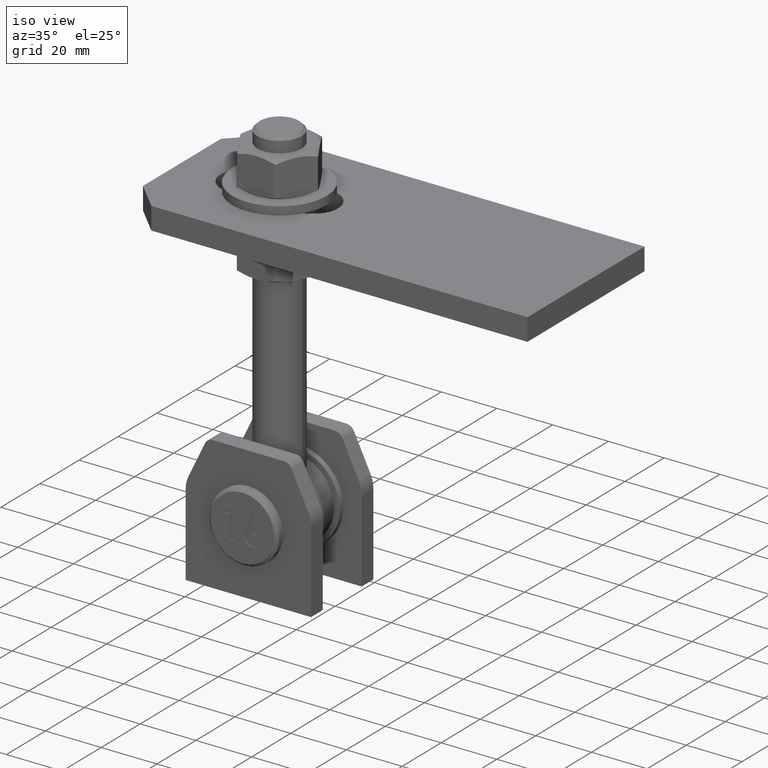
[diagram: clean part render]
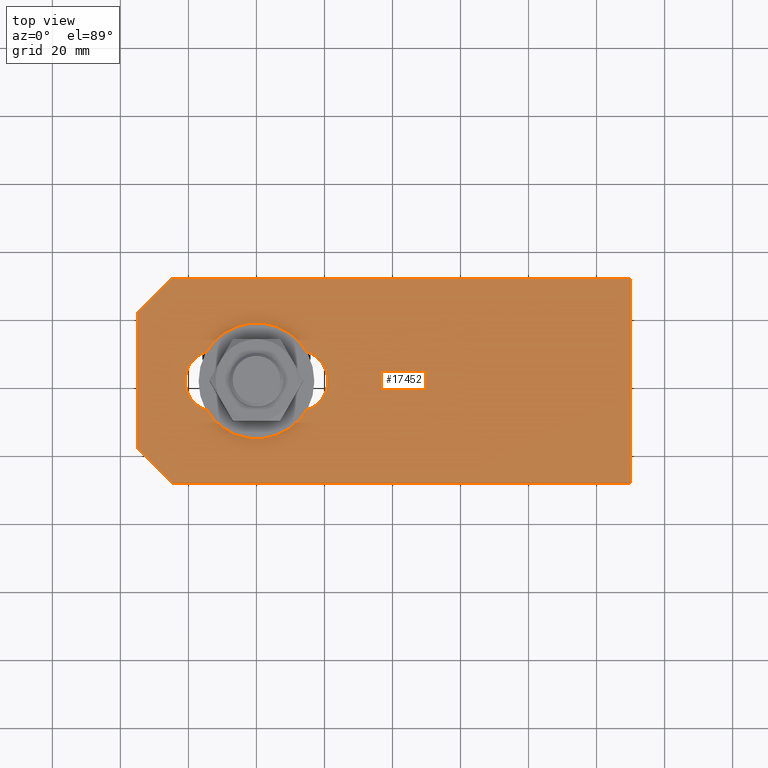
[diagram: tour spotlight — one face highlighted and labeled with its STEP entity id]
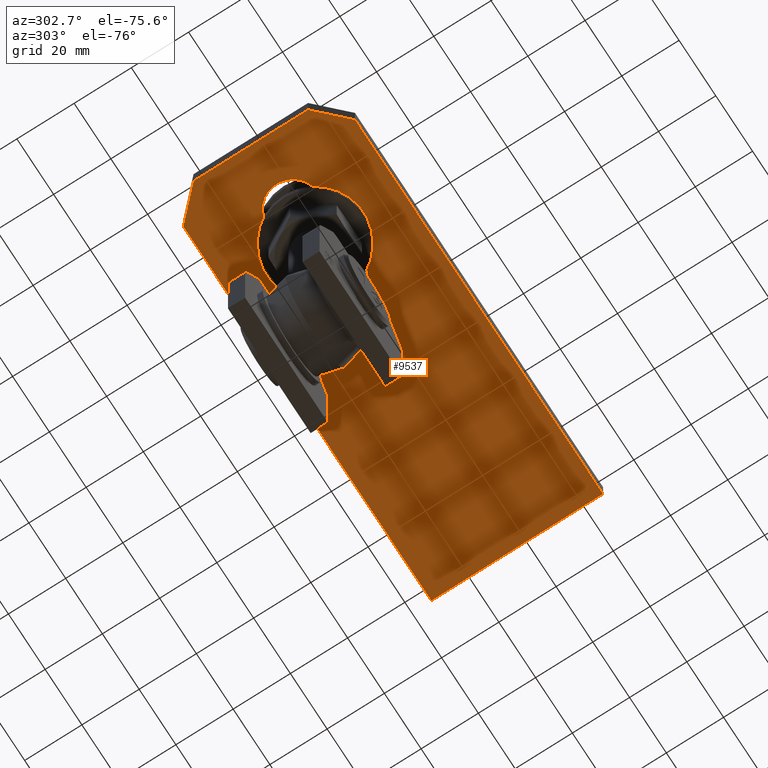
[diagram: tour spotlight — one face highlighted and labeled with its STEP entity id]
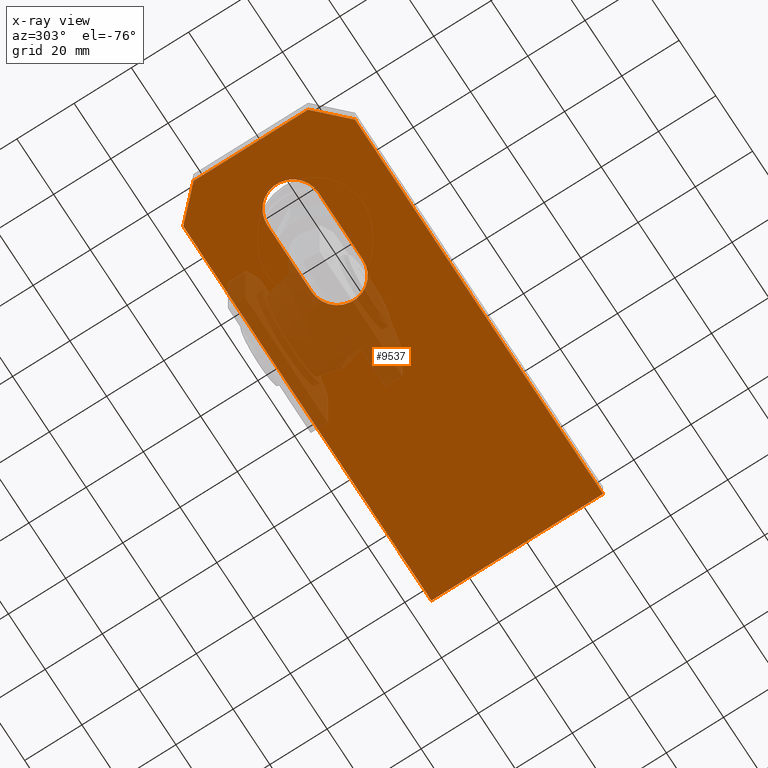
[diagram: x-ray of the same camera — body ghosted, this tour face saturated]
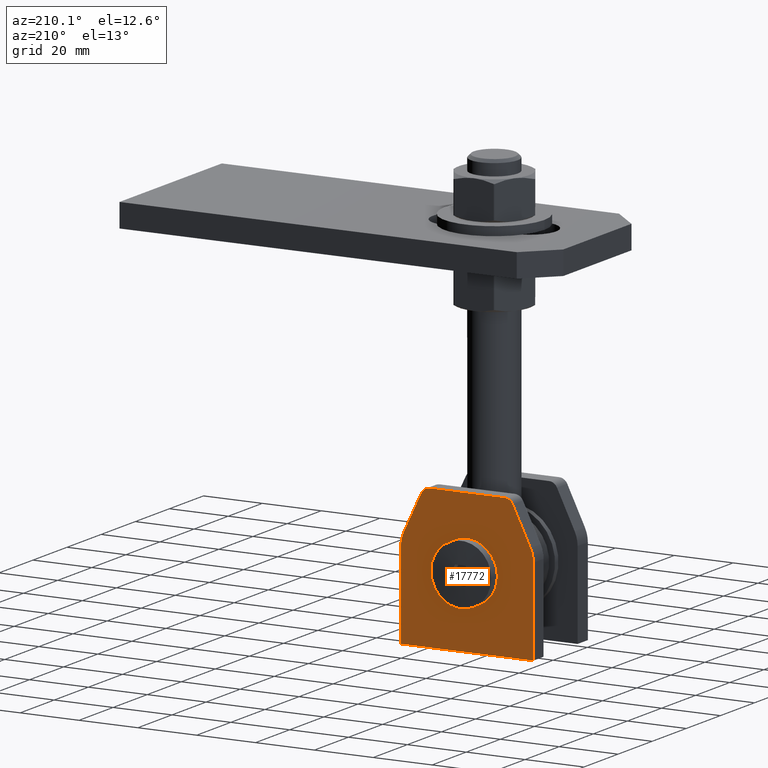
[diagram: tour spotlight — one face highlighted and labeled with its STEP entity id]
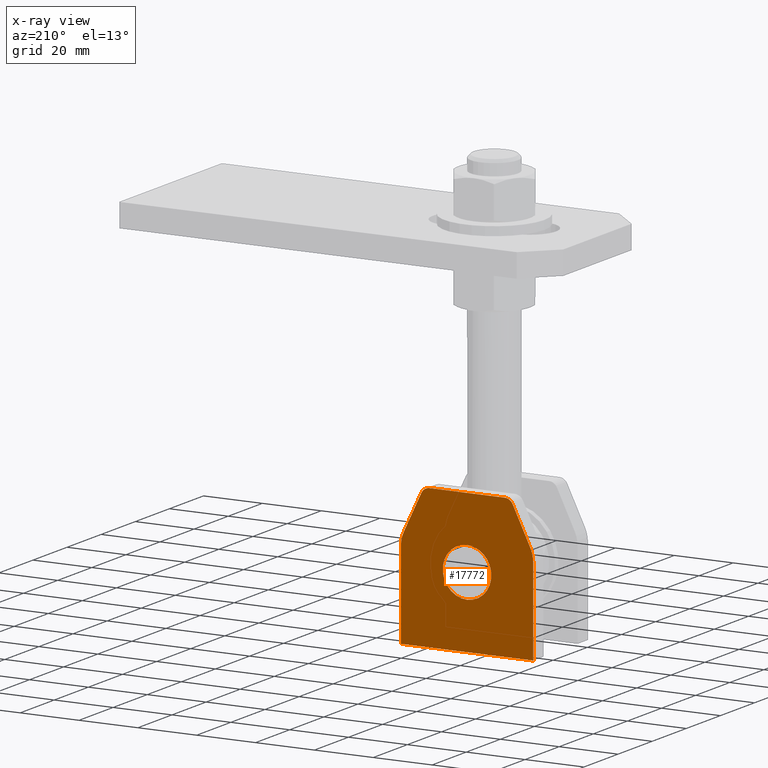
[diagram: x-ray of the same camera — body ghosted, this tour face saturated]
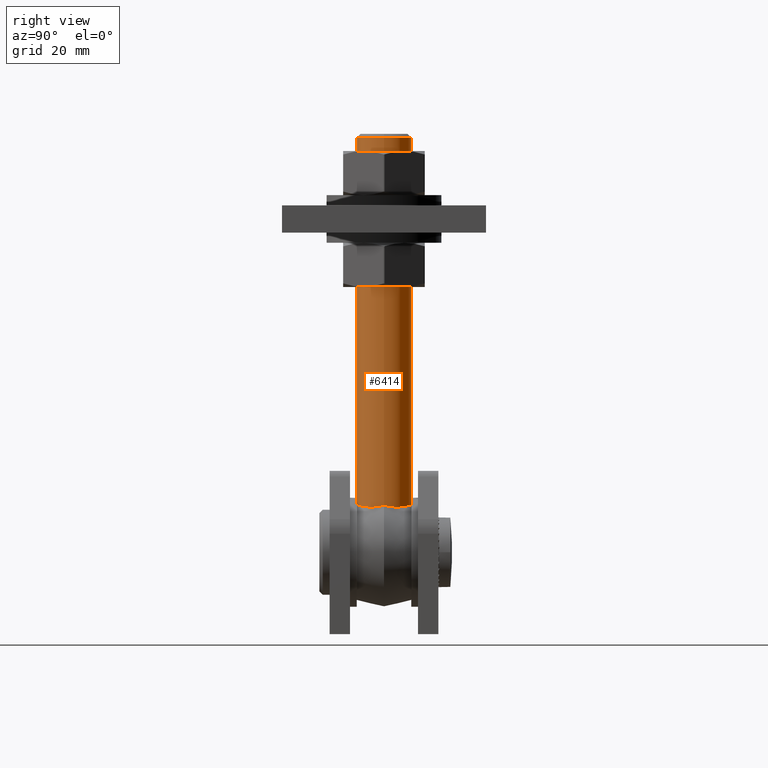
[diagram: tour spotlight — one face highlighted and labeled with its STEP entity id]
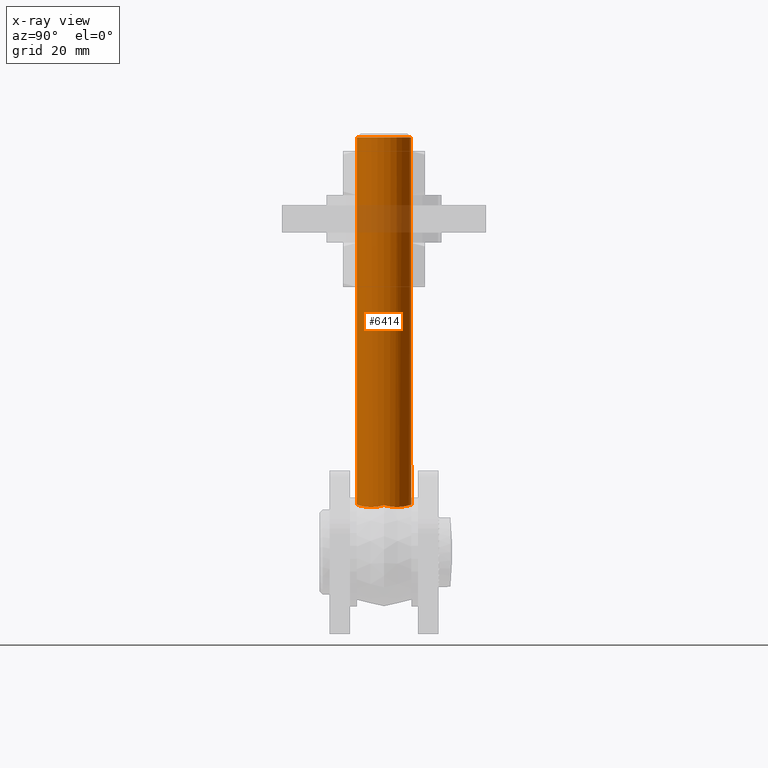
[diagram: x-ray of the same camera — body ghosted, this tour face saturated]
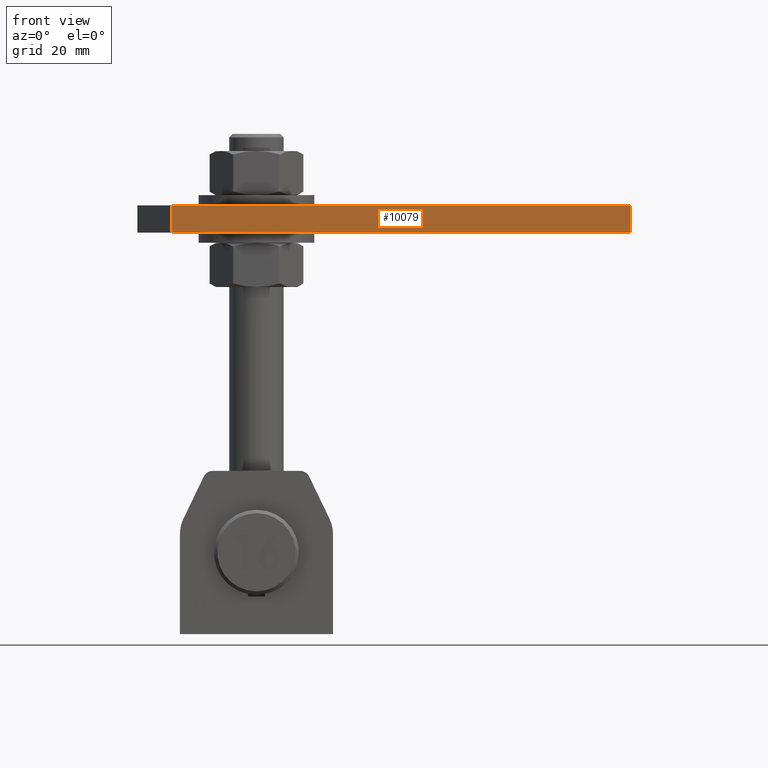
[diagram: tour spotlight — one face highlighted and labeled with its STEP entity id]
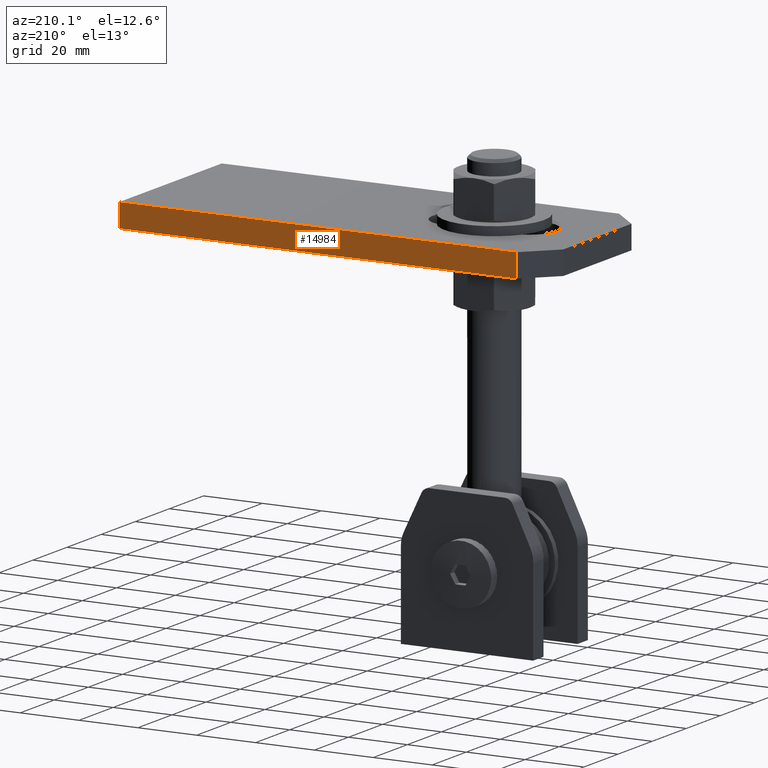
[diagram: tour spotlight — one face highlighted and labeled with its STEP entity id]
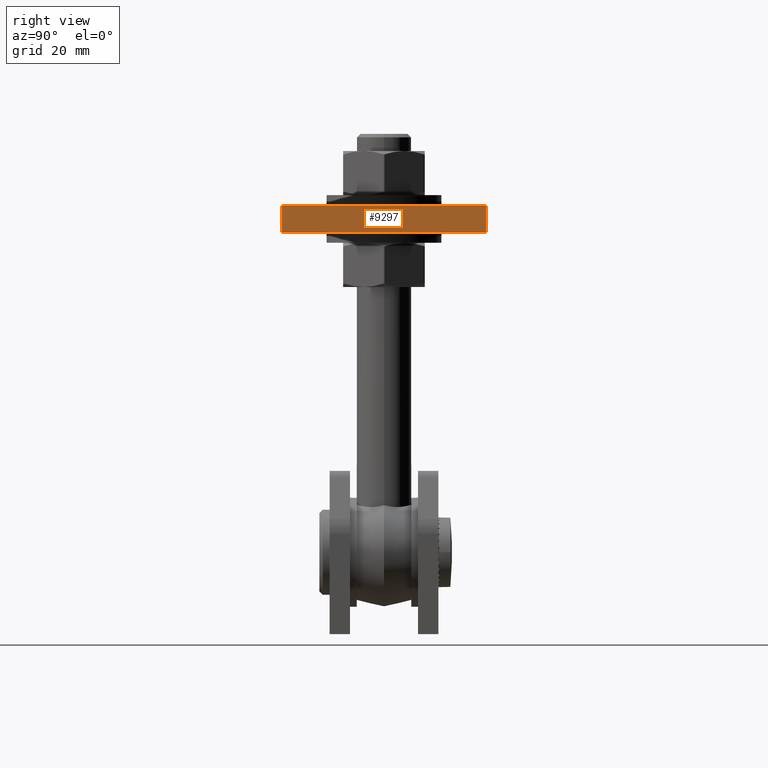
[diagram: tour spotlight — one face highlighted and labeled with its STEP entity id]
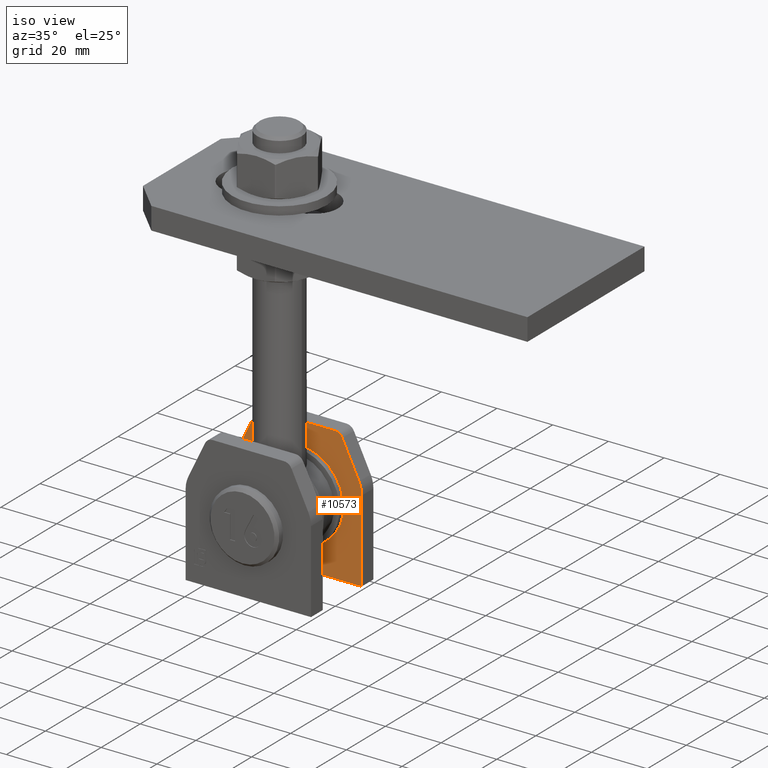
[diagram: tour spotlight — one face highlighted and labeled with its STEP entity id]
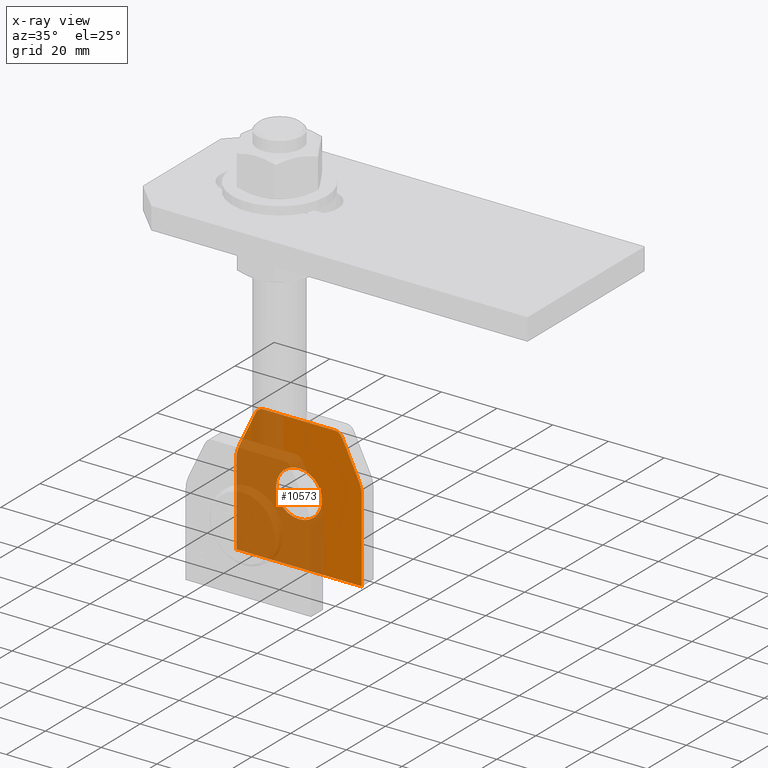
[diagram: x-ray of the same camera — body ghosted, this tour face saturated]
A machine part: a face-by-face anatomy tour. The part has 553 B-rep faces; the first image is the clean iso view, then the 8 largest visible faces are spotlighted one at a time (largest first), each with its STEP entity span.

Face 1 — top view, entity #17452. In plain terms, the highlighted planar face has unit normal (0, 0, 1).
Definition (entity closure, byte-faithful):
#701 = EDGE_LOOP ( 'NONE', ( #11893, #12738, #10540, #19329, #16198, #3528 ) ) ;
#1461 = VECTOR ( 'NONE', #2468, 1000.000000000000000 ) ;
#2210 = DIRECTION ( 'NONE',  ( 1.000000000000000000, 0.000000000000000000, 0.000000000000000000 ) ) ;
#2468 = DIRECTION ( 'NONE',  ( -0.000000000000000000, 1.000000000000000000, -0.000000000000000000 ) ) ;
#2472 = VERTEX_POINT ( 'NONE', #20725 ) ;
#2611 = EDGE_CURVE ( 'NONE', #12828, #3054, #15126, .T. ) ;
#3021 = EDGE_LOOP ( 'NONE', ( #20276, #17084, #5282, #5050 ) ) ;
#3054 = VERTEX_POINT ( 'NONE', #12936 ) ;
#3059 = VERTEX_POINT ( 'NONE', #9320 ) ;
#3361 = VERTEX_POINT ( 'NONE', #14180 ) ;
#3402 = DIRECTION ( 'NONE',  ( -0.000000000000000000, 0.000000000000000000, 1.000000000000000000 ) ) ;
#3528 = ORIENTED_EDGE ( 'NONE', *, *, #12733, .T. ) ;
#4133 = AXIS2_PLACEMENT_3D ( 'NONE', #7026, #8897, #2210 ) ;
#4934 = CARTESIAN_POINT ( 'NONE',  ( -49.50000000000000000, -9.000000000000001776, 4.000000000000003553 ) ) ;
#5041 = FACE_BOUND ( 'NONE', #3021, .T. ) ;
#5050 = ORIENTED_EDGE ( 'NONE', *, *, #12017, .F. ) ;
#5282 = ORIENTED_EDGE ( 'NONE', *, *, #6781, .F. ) ;
#5818 = CIRCLE ( 'NONE', #4133, 9.000000000000001776 ) ;
#5974 = CARTESIAN_POINT ( 'NONE',  ( -72.50000000000001421, 29.99999999999999289, 4.000000000000003553 ) ) ;
#6228 = CARTESIAN_POINT ( 'NONE',  ( -49.50000000000000000, 9.000000000000001776, 4.000000000000003553 ) ) ;
#6643 = CARTESIAN_POINT ( 'NONE',  ( -25.50000000000000355, -9.000000000000001776, 4.000000000000003553 ) ) ;
#6781 = EDGE_CURVE ( 'NONE', #12467, #21792, #15514, .T. ) ;
#7026 = CARTESIAN_POINT ( 'NONE',  ( -25.50000000000000355, 0.000000000000000000, 4.000000000000003553 ) ) ;
#7119 = LINE ( 'NONE', #17921, #21039 ) ;
#7656 = CARTESIAN_POINT ( 'NONE',  ( 72.49999999999998579, 29.99999999999999289, 4.000000000000003553 ) ) ;
#7732 = LINE ( 'NONE', #4934, #10956 ) ;
#8064 = AXIS2_PLACEMENT_3D ( 'NONE', #17144, #9991, #8497 ) ;
#8497 = DIRECTION ( 'NONE',  ( 1.000000000000000000, 0.000000000000000000, 0.000000000000000000 ) ) ;
#8711 = LINE ( 'NONE', #5974, #21560 ) ;
#8897 = DIRECTION ( 'NONE',  ( 0.000000000000000000, 0.000000000000000000, 1.000000000000000000 ) ) ;
#9320 = CARTESIAN_POINT ( 'NONE',  ( -62.50000000000002842, -30.00000000000000711, 4.000000000000003553 ) ) ;
#9496 = EDGE_CURVE ( 'NONE', #3059, #2472, #20605, .T. ) ;
#9623 = CARTESIAN_POINT ( 'NONE',  ( -49.50000000000000000, 9.000000000000001776, 4.000000000000003553 ) ) ;
#9991 = DIRECTION ( 'NONE',  ( 0.000000000000000000, 0.000000000000000000, 1.000000000000000000 ) ) ;
#10175 = LINE ( 'NONE', #13531, #10722 ) ;
#10233 = CARTESIAN_POINT ( 'NONE',  ( -72.50000000000001421, -30.00000000000000711, 4.000000000000003553 ) ) ;
#10335 = CARTESIAN_POINT ( 'NONE',  ( -49.50000000000000000, -9.000000000000001776, 4.000000000000003553 ) ) ;
#10540 = ORIENTED_EDGE ( 'NONE', *, *, #9496, .T. ) ;
#10722 = VECTOR ( 'NONE', #20543, 1000.000000000000114 ) ;
#10905 = VERTEX_POINT ( 'NONE', #11713 ) ;
#10956 = VECTOR ( 'NONE', #13554, 1000.000000000000000 ) ;
#11459 = VECTOR ( 'NONE', #13088, 1000.000000000000000 ) ;
#11713 = CARTESIAN_POINT ( 'NONE',  ( -72.50000000000001421, 19.99999999999998224, 4.000000000000003553 ) ) ;
#11893 = ORIENTED_EDGE ( 'NONE', *, *, #13129, .T. ) ;
#12017 = EDGE_CURVE ( 'NONE', #16014, #12467, #5818, .T. ) ;
#12168 = VECTOR ( 'NONE', #19324, 1000.000000000000000 ) ;
#12333 = VECTOR ( 'NONE', #15131, 1000.000000000000000 ) ;
#12467 = VERTEX_POINT ( 'NONE', #20376 ) ;
#12733 = EDGE_CURVE ( 'NONE', #3054, #10905, #7119, .T. ) ;
#12738 = ORIENTED_EDGE ( 'NONE', *, *, #14292, .T. ) ;
#12828 = VERTEX_POINT ( 'NONE', #19973 ) ;
#12936 = CARTESIAN_POINT ( 'NONE',  ( -62.49999999999997158, 29.99999999999999289, 4.000000000000003553 ) ) ;
#13088 = DIRECTION ( 'NONE',  ( -1.000000000000000000, -0.000000000000000000, -0.000000000000000000 ) ) ;
#13129 = EDGE_CURVE ( 'NONE', #10905, #3361, #8711, .T. ) ;
#13531 = CARTESIAN_POINT ( 'NONE',  ( -46.25000000000019185, -46.24999999999993605, 4.000000000000003553 ) ) ;
#13554 = DIRECTION ( 'NONE',  ( 1.000000000000000000, 0.000000000000000000, 0.000000000000000000 ) ) ;
#14180 = CARTESIAN_POINT ( 'NONE',  ( -72.50000000000001421, -19.99999999999996803, 4.000000000000003553 ) ) ;
#14292 = EDGE_CURVE ( 'NONE', #3361, #3059, #10175, .T. ) ;
#14646 = DIRECTION ( 'NONE',  ( -0.7071067811865485719, -0.7071067811865465735, -0.000000000000000000 ) ) ;
#15126 = LINE ( 'NONE', #21018, #12168 ) ;
#15131 = DIRECTION ( 'NONE',  ( 1.000000000000000000, 0.000000000000000000, 0.000000000000000000 ) ) ;
#15410 = AXIS2_PLACEMENT_3D ( 'NONE', #20465, #3402, #18559 ) ;
#15464 = LINE ( 'NONE', #7656, #1461 ) ;
#15514 = LINE ( 'NONE', #9623, #11459 ) ;
#15554 = EDGE_CURVE ( 'NONE', #19932, #16014, #7732, .T. ) ;
#16014 = VERTEX_POINT ( 'NONE', #6643 ) ;
#16198 = ORIENTED_EDGE ( 'NONE', *, *, #2611, .T. ) ;
#17084 = ORIENTED_EDGE ( 'NONE', *, *, #18578, .F. ) ;
#17144 = CARTESIAN_POINT ( 'NONE',  ( -49.50000000000000000, 0.000000000000000000, 4.000000000000003553 ) ) ;
#17452 = ADVANCED_FACE ( 'NONE', ( #18169, #5041 ), #21968, .T. ) ;
#17921 = CARTESIAN_POINT ( 'NONE',  ( -46.24999999999990052, 46.25000000000003553, 4.000000000000003553 ) ) ;
#18169 = FACE_OUTER_BOUND ( 'NONE', #701, .T. ) ;
#18559 = DIRECTION ( 'NONE',  ( 1.000000000000000000, 0.000000000000000000, 0.000000000000000000 ) ) ;
#18578 = EDGE_CURVE ( 'NONE', #21792, #19932, #21950, .T. ) ;
#19324 = DIRECTION ( 'NONE',  ( -1.000000000000000000, -0.000000000000000000, -0.000000000000000000 ) ) ;
#19329 = ORIENTED_EDGE ( 'NONE', *, *, #21874, .T. ) ;
#19741 = DIRECTION ( 'NONE',  ( 0.000000000000000000, -1.000000000000000000, 0.000000000000000000 ) ) ;
#19932 = VERTEX_POINT ( 'NONE', #10335 ) ;
#19973 = CARTESIAN_POINT ( 'NONE',  ( 72.49999999999998579, 29.99999999999999289, 4.000000000000003553 ) ) ;
#20276 = ORIENTED_EDGE ( 'NONE', *, *, #15554, .F. ) ;
#20376 = CARTESIAN_POINT ( 'NONE',  ( -25.50000000000000355, 9.000000000000001776, 4.000000000000003553 ) ) ;
#20465 = CARTESIAN_POINT ( 'NONE',  ( 0.000000000000000000, 0.000000000000000000, 4.000000000000003553 ) ) ;
#20543 = DIRECTION ( 'NONE',  ( 0.7071067811865455743, -0.7071067811865495711, 0.000000000000000000 ) ) ;
#20605 = LINE ( 'NONE', #10233, #12333 ) ;
#20725 = CARTESIAN_POINT ( 'NONE',  ( 72.49999999999998579, -30.00000000000000711, 4.000000000000003553 ) ) ;
#21018 = CARTESIAN_POINT ( 'NONE',  ( -72.50000000000001421, 29.99999999999999289, 4.000000000000003553 ) ) ;
#21039 = VECTOR ( 'NONE', #14646, 1000.000000000000000 ) ;
#21560 = VECTOR ( 'NONE', #19741, 1000.000000000000000 ) ;
#21792 = VERTEX_POINT ( 'NONE', #6228 ) ;
#21874 = EDGE_CURVE ( 'NONE', #2472, #12828, #15464, .T. ) ;
#21950 = CIRCLE ( 'NONE', #8064, 9.000000000000001776 ) ;
#21968 = PLANE ( 'NONE',  #15410 ) ;

Face 2 — auxiliary view, entity #9537. An x-ray twin of the same camera follows (body ghosted, this face saturated) — the face is partly hidden behind the body. In plain terms, the highlighted planar face has unit normal (0, 0, 1).
Definition (entity closure, byte-faithful):
#254 = VERTEX_POINT ( 'NONE', #6128 ) ;
#762 = DIRECTION ( 'NONE',  ( 1.000000000000000000, 0.000000000000000000, 0.000000000000000000 ) ) ;
#979 = DIRECTION ( 'NONE',  ( 0.000000000000000000, 0.000000000000000000, 1.000000000000000000 ) ) ;
#1070 = ORIENTED_EDGE ( 'NONE', *, *, #1332, .T. ) ;
#1332 = EDGE_CURVE ( 'NONE', #9703, #21674, #5248, .T. ) ;
#1463 = EDGE_CURVE ( 'NONE', #19106, #4054, #12721, .T. ) ;
#1766 = DIRECTION ( 'NONE',  ( 0.000000000000000000, 0.000000000000000000, 1.000000000000000000 ) ) ;
#1769 = VECTOR ( 'NONE', #9540, 1000.000000000000000 ) ;
#2327 = CARTESIAN_POINT ( 'NONE',  ( -72.50000000000001421, 19.99999999999998224, -4.000000000000003553 ) ) ;
#2531 = ORIENTED_EDGE ( 'NONE', *, *, #1463, .F. ) ;
#2766 = DIRECTION ( 'NONE',  ( 0.000000000000000000, -1.000000000000000000, 0.000000000000000000 ) ) ;
#2869 = EDGE_CURVE ( 'NONE', #254, #9703, #10154, .T. ) ;
#3254 = VERTEX_POINT ( 'NONE', #2327 ) ;
#3395 = CARTESIAN_POINT ( 'NONE',  ( -25.50000000000000355, -9.000000000000001776, -4.000000000000003553 ) ) ;
#3883 = LINE ( 'NONE', #14846, #11657 ) ;
#4040 = AXIS2_PLACEMENT_3D ( 'NONE', #7177, #1766, #17513 ) ;
#4054 = VERTEX_POINT ( 'NONE', #20314 ) ;
#4172 = VERTEX_POINT ( 'NONE', #12149 ) ;
#4751 = ORIENTED_EDGE ( 'NONE', *, *, #17980, .T. ) ;
#5195 = CARTESIAN_POINT ( 'NONE',  ( -49.50000000000000000, -9.000000000000001776, -4.000000000000003553 ) ) ;
#5224 = CARTESIAN_POINT ( 'NONE',  ( 0.000000000000000000, 0.000000000000000000, -4.000000000000003553 ) ) ;
#5248 = LINE ( 'NONE', #5195, #18380 ) ;
#5607 = VECTOR ( 'NONE', #2766, 1000.000000000000000 ) ;
#5673 = CARTESIAN_POINT ( 'NONE',  ( -49.50000000000000000, -9.000000000000001776, -4.000000000000003553 ) ) ;
#5823 = CARTESIAN_POINT ( 'NONE',  ( -72.50000000000001421, 19.99999999999998224, -4.000000000000003553 ) ) ;
#6128 = CARTESIAN_POINT ( 'NONE',  ( -49.50000000000000000, 9.000000000000001776, -4.000000000000003553 ) ) ;
#6783 = DIRECTION ( 'NONE',  ( 1.000000000000000000, 0.000000000000000000, 0.000000000000000000 ) ) ;
#7177 = CARTESIAN_POINT ( 'NONE',  ( -49.50000000000000000, 0.000000000000000000, -4.000000000000003553 ) ) ;
#7324 = EDGE_CURVE ( 'NONE', #4054, #19107, #7696, .T. ) ;
#7493 = FACE_OUTER_BOUND ( 'NONE', #16153, .T. ) ;
#7696 = LINE ( 'NONE', #19808, #1769 ) ;
#7825 = AXIS2_PLACEMENT_3D ( 'NONE', #5224, #18931, #13926 ) ;
#8642 = CARTESIAN_POINT ( 'NONE',  ( -62.50000000000002842, -30.00000000000000711, -4.000000000000003553 ) ) ;
#8803 = PLANE ( 'NONE',  #7825 ) ;
#9233 = ORIENTED_EDGE ( 'NONE', *, *, #9519, .F. ) ;
#9367 = DIRECTION ( 'NONE',  ( -0.000000000000000000, 1.000000000000000000, -0.000000000000000000 ) ) ;
#9519 = EDGE_CURVE ( 'NONE', #18000, #19106, #21682, .T. ) ;
#9537 = ADVANCED_FACE ( 'NONE', ( #7493, #14768 ), #8803, .F. ) ;
#9540 = DIRECTION ( 'NONE',  ( -1.000000000000000000, -0.000000000000000000, -0.000000000000000000 ) ) ;
#9703 = VERTEX_POINT ( 'NONE', #5673 ) ;
#9800 = EDGE_CURVE ( 'NONE', #21674, #4172, #14188, .T. ) ;
#9878 = VECTOR ( 'NONE', #21210, 1000.000000000000000 ) ;
#10154 = CIRCLE ( 'NONE', #4040, 9.000000000000001776 ) ;
#11494 = CARTESIAN_POINT ( 'NONE',  ( -72.50000000000001421, 29.99999999999999289, -4.000000000000003553 ) ) ;
#11657 = VECTOR ( 'NONE', #13304, 1000.000000000000114 ) ;
#11734 = ORIENTED_EDGE ( 'NONE', *, *, #13279, .T. ) ;
#11892 = CARTESIAN_POINT ( 'NONE',  ( -72.50000000000001421, -19.99999999999996803, -4.000000000000003553 ) ) ;
#12149 = CARTESIAN_POINT ( 'NONE',  ( -25.50000000000000355, 9.000000000000001776, -4.000000000000003553 ) ) ;
#12562 = CARTESIAN_POINT ( 'NONE',  ( -62.49999999999997158, 29.99999999999999289, -4.000000000000003553 ) ) ;
#12721 = LINE ( 'NONE', #17938, #21811 ) ;
#12845 = LINE ( 'NONE', #5823, #9878 ) ;
#13140 = ORIENTED_EDGE ( 'NONE', *, *, #7324, .F. ) ;
#13279 = EDGE_CURVE ( 'NONE', #18000, #20915, #3883, .T. ) ;
#13304 = DIRECTION ( 'NONE',  ( -0.7071067811865455743, 0.7071067811865495711, -0.000000000000000000 ) ) ;
#13926 = DIRECTION ( 'NONE',  ( 1.000000000000000000, 0.000000000000000000, 0.000000000000000000 ) ) ;
#14188 = CIRCLE ( 'NONE', #21600, 9.000000000000001776 ) ;
#14519 = ORIENTED_EDGE ( 'NONE', *, *, #17033, .F. ) ;
#14741 = LINE ( 'NONE', #11494, #5607 ) ;
#14768 = FACE_BOUND ( 'NONE', #21062, .T. ) ;
#14846 = CARTESIAN_POINT ( 'NONE',  ( -62.50000000000002842, -30.00000000000000711, -4.000000000000003553 ) ) ;
#16153 = EDGE_LOOP ( 'NONE', ( #9233, #11734, #14519, #19214, #13140, #2531 ) ) ;
#16163 = CARTESIAN_POINT ( 'NONE',  ( 72.49999999999998579, -30.00000000000000711, -4.000000000000003553 ) ) ;
#16913 = VECTOR ( 'NONE', #6783, 1000.000000000000000 ) ;
#16986 = DIRECTION ( 'NONE',  ( -1.000000000000000000, -0.000000000000000000, -0.000000000000000000 ) ) ;
#17033 = EDGE_CURVE ( 'NONE', #3254, #20915, #14741, .T. ) ;
#17513 = DIRECTION ( 'NONE',  ( 1.000000000000000000, 0.000000000000000000, 0.000000000000000000 ) ) ;
#17938 = CARTESIAN_POINT ( 'NONE',  ( 72.49999999999998579, 29.99999999999999289, -4.000000000000003553 ) ) ;
#17980 = EDGE_CURVE ( 'NONE', #4172, #254, #22130, .T. ) ;
#18000 = VERTEX_POINT ( 'NONE', #8642 ) ;
#18063 = ORIENTED_EDGE ( 'NONE', *, *, #9800, .T. ) ;
#18380 = VECTOR ( 'NONE', #19262, 1000.000000000000000 ) ;
#18931 = DIRECTION ( 'NONE',  ( -0.000000000000000000, 0.000000000000000000, 1.000000000000000000 ) ) ;
#19106 = VERTEX_POINT ( 'NONE', #16163 ) ;
#19107 = VERTEX_POINT ( 'NONE', #12562 ) ;
#19206 = EDGE_CURVE ( 'NONE', #3254, #19107, #12845, .T. ) ;
#19214 = ORIENTED_EDGE ( 'NONE', *, *, #19206, .T. ) ;
#19262 = DIRECTION ( 'NONE',  ( 1.000000000000000000, 0.000000000000000000, 0.000000000000000000 ) ) ;
#19754 = ORIENTED_EDGE ( 'NONE', *, *, #2869, .T. ) ;
#19808 = CARTESIAN_POINT ( 'NONE',  ( -72.50000000000001421, 29.99999999999999289, -4.000000000000003553 ) ) ;
#20314 = CARTESIAN_POINT ( 'NONE',  ( 72.49999999999998579, 29.99999999999999289, -4.000000000000003553 ) ) ;
#20319 = CARTESIAN_POINT ( 'NONE',  ( -49.50000000000000000, 9.000000000000001776, -4.000000000000003553 ) ) ;
#20334 = CARTESIAN_POINT ( 'NONE',  ( -72.50000000000001421, -30.00000000000000711, -4.000000000000003553 ) ) ;
#20915 = VERTEX_POINT ( 'NONE', #11892 ) ;
#21062 = EDGE_LOOP ( 'NONE', ( #19754, #1070, #18063, #4751 ) ) ;
#21210 = DIRECTION ( 'NONE',  ( 0.7071067811865485719, 0.7071067811865465735, -0.000000000000000000 ) ) ;
#21581 = CARTESIAN_POINT ( 'NONE',  ( -25.50000000000000355, 0.000000000000000000, -4.000000000000003553 ) ) ;
#21600 = AXIS2_PLACEMENT_3D ( 'NONE', #21581, #979, #762 ) ;
#21604 = VECTOR ( 'NONE', #16986, 1000.000000000000000 ) ;
#21674 = VERTEX_POINT ( 'NONE', #3395 ) ;
#21682 = LINE ( 'NONE', #20334, #16913 ) ;
#21811 = VECTOR ( 'NONE', #9367, 1000.000000000000000 ) ;
#22130 = LINE ( 'NONE', #20319, #21604 ) ;

Face 3 — auxiliary view, entity #17772. An x-ray twin of the same camera follows (body ghosted, this face saturated) — the face is partly hidden behind the body. In plain terms, the highlighted planar face has unit normal (0, 1, 0).
Definition (entity closure, byte-faithful):
#238 = VECTOR ( 'NONE', #17904, 1000.000000000000114 ) ;
#454 = DIRECTION ( 'NONE',  ( -0.000000000000000000, -0.000000000000000000, 1.000000000000000000 ) ) ;
#612 = VERTEX_POINT ( 'NONE', #18376 ) ;
#961 = VECTOR ( 'NONE', #17798, 1000.000000000000000 ) ;
#987 = FACE_BOUND ( 'NONE', #6033, .T. ) ;
#1160 = ORIENTED_EDGE ( 'NONE', *, *, #18229, .T. ) ;
#1744 = AXIS2_PLACEMENT_3D ( 'NONE', #3659, #19227, #14002 ) ;
#2054 = EDGE_CURVE ( 'NONE', #3137, #612, #5207, .T. ) ;
#2119 = CARTESIAN_POINT ( 'NONE',  ( 12.80000000000000604, 2.999999999999999112, 23.99999999999999645 ) ) ;
#2198 = EDGE_CURVE ( 'NONE', #17088, #7102, #4937, .T. ) ;
#2483 = VECTOR ( 'NONE', #13188, 1000.000000000000000 ) ;
#2653 = EDGE_CURVE ( 'NONE', #7058, #7214, #14587, .T. ) ;
#2685 = DIRECTION ( 'NONE',  ( 0.000000000000000000, 1.000000000000000000, 0.000000000000000000 ) ) ;
#2884 = CIRCLE ( 'NONE', #6483, 8.250000000000000000 ) ;
#3137 = VERTEX_POINT ( 'NONE', #10658 ) ;
#3659 = CARTESIAN_POINT ( 'NONE',  ( 12.50000000000000178, 2.999999999999999112, 5.499999999999997335 ) ) ;
#3792 = ORIENTED_EDGE ( 'NONE', *, *, #2653, .T. ) ;
#4405 = EDGE_CURVE ( 'NONE', #4429, #3137, #11810, .T. ) ;
#4429 = VERTEX_POINT ( 'NONE', #7580 ) ;
#4430 = DIRECTION ( 'NONE',  ( 0.000000000000000000, 0.000000000000000000, 1.000000000000000000 ) ) ;
#4503 = CARTESIAN_POINT ( 'NONE',  ( -12.79999999999999538, 2.999999999999999112, 21.00000000000000711 ) ) ;
#4601 = EDGE_CURVE ( 'NONE', #7102, #16953, #8047, .T. ) ;
#4753 = CARTESIAN_POINT ( 'NONE',  ( -15.50248197176347986, 2.999999999999999112, 22.30253260699813112 ) ) ;
#4807 = CARTESIAN_POINT ( 'NONE',  ( 3.469446951953614189E-15, 2.999999999999999112, 0.05000000000000273670 ) ) ;
#4937 = CIRCLE ( 'NONE', #14956, 2.999999999999995559 ) ;
#4979 = LINE ( 'NONE', #14471, #13822 ) ;
#5207 = CIRCLE ( 'NONE', #6873, 10.00000000000000533 ) ;
#5236 = CARTESIAN_POINT ( 'NONE',  ( 12.50000000000000178, 2.999999999999999112, 5.499999999999997335 ) ) ;
#5288 = VERTEX_POINT ( 'NONE', #10014 ) ;
#5689 = VERTEX_POINT ( 'NONE', #4753 ) ;
#6033 = EDGE_LOOP ( 'NONE', ( #18726 ) ) ;
#6177 = EDGE_CURVE ( 'NONE', #5288, #5288, #2884, .T. ) ;
#6483 = AXIS2_PLACEMENT_3D ( 'NONE', #4807, #8457, #8381 ) ;
#6625 = CIRCLE ( 'NONE', #1744, 10.00000000000000533 ) ;
#6823 = ORIENTED_EDGE ( 'NONE', *, *, #7494, .T. ) ;
#6873 = AXIS2_PLACEMENT_3D ( 'NONE', #17631, #9072, #16066 ) ;
#7058 = VERTEX_POINT ( 'NONE', #15392 ) ;
#7102 = VERTEX_POINT ( 'NONE', #8673 ) ;
#7214 = VERTEX_POINT ( 'NONE', #10531 ) ;
#7225 = CARTESIAN_POINT ( 'NONE',  ( -22.50000000000000000, 2.999999999999999112, 5.500000000000001776 ) ) ;
#7494 = EDGE_CURVE ( 'NONE', #16953, #7058, #6625, .T. ) ;
#7580 = CARTESIAN_POINT ( 'NONE',  ( -22.50000000000000000, 2.999999999999999112, -24.00000000000000000 ) ) ;
#7853 = DIRECTION ( 'NONE',  ( 0.000000000000000000, 0.000000000000000000, -1.000000000000000000 ) ) ;
#8047 = LINE ( 'NONE', #17827, #238 ) ;
#8381 = DIRECTION ( 'NONE',  ( 0.000000000000000000, 0.000000000000000000, 1.000000000000000000 ) ) ;
#8457 = DIRECTION ( 'NONE',  ( 0.000000000000000000, 1.000000000000000000, 0.000000000000000000 ) ) ;
#8539 = CIRCLE ( 'NONE', #20326, 2.999999999999995559 ) ;
#8591 = PLANE ( 'NONE',  #18974 ) ;
#8673 = CARTESIAN_POINT ( 'NONE',  ( 15.50248197176349407, 2.999999999999999112, 22.30253260699812756 ) ) ;
#8763 = ORIENTED_EDGE ( 'NONE', *, *, #2198, .T. ) ;
#9040 = FACE_OUTER_BOUND ( 'NONE', #9749, .T. ) ;
#9072 = DIRECTION ( 'NONE',  ( 0.000000000000000000, 1.000000000000000000, -0.000000000000000000 ) ) ;
#9464 = DIRECTION ( 'NONE',  ( 0.4341775356660423357, -0.000000000000000000, 0.9008273239211622707 ) ) ;
#9749 = EDGE_LOOP ( 'NONE', ( #14577, #16502, #13271, #15185, #1160, #8763, #11936, #6823, #3792, #10652 ) ) ;
#9979 = CARTESIAN_POINT ( 'NONE',  ( -12.79999999999999538, 2.999999999999999112, 24.00000000000000000 ) ) ;
#10014 = CARTESIAN_POINT ( 'NONE',  ( 3.469446951953614189E-15, 2.999999999999999112, 8.300000000000004263 ) ) ;
#10444 = EDGE_CURVE ( 'NONE', #5689, #11311, #8539, .T. ) ;
#10531 = CARTESIAN_POINT ( 'NONE',  ( 22.50000000000000000, 2.999999999999999112, -24.00000000000000711 ) ) ;
#10652 = ORIENTED_EDGE ( 'NONE', *, *, #20695, .T. ) ;
#10658 = CARTESIAN_POINT ( 'NONE',  ( -22.50000000000000000, 2.999999999999999112, 5.500000000000002665 ) ) ;
#10744 = CARTESIAN_POINT ( 'NONE',  ( 21.50827323921163270, 2.999999999999999112, 9.841775356660416918 ) ) ;
#11311 = VERTEX_POINT ( 'NONE', #9979 ) ;
#11810 = LINE ( 'NONE', #7225, #13975 ) ;
#11936 = ORIENTED_EDGE ( 'NONE', *, *, #4601, .T. ) ;
#12566 = DIRECTION ( 'NONE',  ( 0.000000000000000000, -0.000000000000000000, 1.000000000000000000 ) ) ;
#12966 = CARTESIAN_POINT ( 'NONE',  ( 12.80000000000000604, 2.999999999999999112, 21.00000000000000355 ) ) ;
#13052 = LINE ( 'NONE', #2119, #20810 ) ;
#13074 = CARTESIAN_POINT ( 'NONE',  ( 22.50000000000000000, 2.999999999999999112, -24.00000000000000711 ) ) ;
#13112 = DIRECTION ( 'NONE',  ( 0.000000000000000000, 1.000000000000000000, -0.000000000000000000 ) ) ;
#13137 = EDGE_CURVE ( 'NONE', #612, #5689, #4979, .T. ) ;
#13188 = DIRECTION ( 'NONE',  ( -2.352167425053297404E-16, -0.000000000000000000, -1.000000000000000000 ) ) ;
#13271 = ORIENTED_EDGE ( 'NONE', *, *, #13137, .T. ) ;
#13822 = VECTOR ( 'NONE', #9464, 1000.000000000000114 ) ;
#13975 = VECTOR ( 'NONE', #454, 1000.000000000000000 ) ;
#14002 = DIRECTION ( 'NONE',  ( 0.000000000000000000, 0.000000000000000000, 1.000000000000000000 ) ) ;
#14471 = CARTESIAN_POINT ( 'NONE',  ( -15.50248197176348341, 2.999999999999999112, 22.30253260699813112 ) ) ;
#14577 = ORIENTED_EDGE ( 'NONE', *, *, #4405, .T. ) ;
#14587 = LINE ( 'NONE', #13074, #2483 ) ;
#14956 = AXIS2_PLACEMENT_3D ( 'NONE', #12966, #2685, #4430 ) ;
#15185 = ORIENTED_EDGE ( 'NONE', *, *, #10444, .T. ) ;
#15392 = CARTESIAN_POINT ( 'NONE',  ( 22.50000000000000711, 2.999999999999999112, 5.499999999999996447 ) ) ;
#15762 = LINE ( 'NONE', #21508, #961 ) ;
#16066 = DIRECTION ( 'NONE',  ( 0.000000000000000000, 0.000000000000000000, -1.000000000000000000 ) ) ;
#16452 = CARTESIAN_POINT ( 'NONE',  ( 12.80000000000000604, 2.999999999999999112, 24.00000000000000000 ) ) ;
#16502 = ORIENTED_EDGE ( 'NONE', *, *, #2054, .T. ) ;
#16953 = VERTEX_POINT ( 'NONE', #10744 ) ;
#17088 = VERTEX_POINT ( 'NONE', #16452 ) ;
#17631 = CARTESIAN_POINT ( 'NONE',  ( -12.49999999999999467, 2.999999999999999112, 5.500000000000000888 ) ) ;
#17772 = ADVANCED_FACE ( 'NONE', ( #9040, #987 ), #8591, .T. ) ;
#17798 = DIRECTION ( 'NONE',  ( -1.000000000000000000, -0.000000000000000000, 1.541976423090495387E-16 ) ) ;
#17827 = CARTESIAN_POINT ( 'NONE',  ( 21.50827323921163625, 2.999999999999999112, 9.841775356660416918 ) ) ;
#17904 = DIRECTION ( 'NONE',  ( 0.4341775356660420582, -0.000000000000000000, -0.9008273239211623817 ) ) ;
#18229 = EDGE_CURVE ( 'NONE', #11311, #17088, #13052, .T. ) ;
#18376 = CARTESIAN_POINT ( 'NONE',  ( -21.50827323921162915, 2.999999999999999112, 9.841775356660424023 ) ) ;
#18726 = ORIENTED_EDGE ( 'NONE', *, *, #6177, .F. ) ;
#18974 = AXIS2_PLACEMENT_3D ( 'NONE', #5236, #20640, #12566 ) ;
#19225 = DIRECTION ( 'NONE',  ( 1.000000000000000000, -0.000000000000000000, -1.355252715606880543E-16 ) ) ;
#19227 = DIRECTION ( 'NONE',  ( 0.000000000000000000, 1.000000000000000000, 0.000000000000000000 ) ) ;
#20326 = AXIS2_PLACEMENT_3D ( 'NONE', #4503, #13112, #7853 ) ;
#20640 = DIRECTION ( 'NONE',  ( 0.000000000000000000, 1.000000000000000000, 0.000000000000000000 ) ) ;
#20695 = EDGE_CURVE ( 'NONE', #7214, #4429, #15762, .T. ) ;
#20810 = VECTOR ( 'NONE', #19225, 1000.000000000000000 ) ;
#21508 = CARTESIAN_POINT ( 'NONE',  ( -22.50000000000000000, 2.999999999999999112, -24.00000000000000000 ) ) ;

Face 4 — right view, entity #6414. An x-ray twin of the same camera follows (body ghosted, this face saturated) — the face is partly hidden behind the body. In plain terms, the highlighted cylindrical surface (bore or boss wall) has radius 8 mm, axis along (0, 0, 1).
Definition (entity closure, byte-faithful):
#101 = CARTESIAN_POINT ( 'NONE',  ( -7.999999999999998224, -0.5111825544353230111, 13.70884076784687799 ) ) ;
#517 = CARTESIAN_POINT ( 'NONE',  ( 8.000000000000000000, -0.5111825544353248985, 13.70884076784687977 ) ) ;
#947 = CARTESIAN_POINT ( 'NONE',  ( 6.368982535474221329, -4.870115891597321500, 13.34287124068009689 ) ) ;
#960 = DIRECTION ( 'NONE',  ( 0.000000000000000000, 0.000000000000000000, 1.000000000000000000 ) ) ;
#1042 = CARTESIAN_POINT ( 'NONE',  ( -4.886099879437690419, -6.355995226199457449, 13.56429753302307262 ) ) ;
#1094 = CARTESIAN_POINT ( 'NONE',  ( 7.753463443119792409, -2.037656324389636175, 13.41058186830507104 ) ) ;
#1551 = CARTESIAN_POINT ( 'NONE',  ( -8.000000000000000000, 0.5116515334434764695, 13.70870538526857985 ) ) ;
#1704 = CARTESIAN_POINT ( 'NONE',  ( 7.753463443119790632, 2.037656324389638396, 13.41058186830507282 ) ) ;
#1759 = CARTESIAN_POINT ( 'NONE',  ( -7.600958879076470609, -2.549711044828303574, 13.35139618400226169 ) ) ;
#2605 = CYLINDRICAL_SURFACE ( 'NONE', #11514, 8.000000000000000000 ) ;
#2609 = CARTESIAN_POINT ( 'NONE',  ( 7.600958879076469721, -2.549711044828304463, 13.35139618400226347 ) ) ;
#2677 = CARTESIAN_POINT ( 'NONE',  ( 5.284544543673084335E-16, -8.000000000000000000, 13.99999999999999645 ) ) ;
#3003 = CARTESIAN_POINT ( 'NONE',  ( -8.000000000000000000, 1.734723475976807094E-15, 13.85640646055101755 ) ) ;
#3117 = CARTESIAN_POINT ( 'NONE',  ( -4.672629499833444555, 6.498872145990300275, 13.59641415892090599 ) ) ;
#3200 = CARTESIAN_POINT ( 'NONE',  ( -6.368474160583239119, 4.870760742901217633, 13.34293470562183970 ) ) ;
#3444 = CARTESIAN_POINT ( 'NONE',  ( 1.055941467796958744, 7.947223302212568896, 13.98276856443154159 ) ) ;
#3686 = CARTESIAN_POINT ( 'NONE',  ( -4.479358534360870955E-16, 8.000000000000000000, 13.99999999999999645 ) ) ;
#4232 = EDGE_LOOP ( 'NONE', ( #13836, #7634, #12641, #8694 ) ) ;
#4337 = B_SPLINE_CURVE_WITH_KNOTS ( 'NONE', 3,
 ( #21774, #15304, #9952, #8600, #11896, #6798, #6586, #3117, #4940, #10021, #5168, #18794, #3200, #8531, #11686, #13560, #6875, #5017, #17173, #18588, #1551, #20491 ),
 .UNSPECIFIED., .F., .F.,
 ( 4, 2, 2, 2, 2, 2, 2, 2, 2, 2, 4 ),
 ( 0.01259678301076984884, 0.01417183633139893796, 0.01574688965202802882, 0.01732194297265711447, 0.01810946963297165729, 0.01889699629328620359, 0.02047204961391529271, 0.02204710293454437836, 0.02283462959485892119, 0.02362215625517346401, 0.02519720957580255313 ),
 .UNSPECIFIED. ) ;
#4378 = VERTEX_POINT ( 'NONE', #3003 ) ;
#4422 = CARTESIAN_POINT ( 'NONE',  ( 2.581407963970473229, -7.576630926828365808, 13.86991060743746296 ) ) ;
#4806 = CARTESIAN_POINT ( 'NONE',  ( -6.368982535474220441, -4.870115891597316171, 13.34287124068009334 ) ) ;
#4940 = CARTESIAN_POINT ( 'NONE',  ( -4.885161968591392068, 6.340651876630857942, 13.56329160882363993 ) ) ;
#5017 = CARTESIAN_POINT ( 'NONE',  ( -7.738537598111686400, 2.045582005807099701, 13.41694872261287053 ) ) ;
#5155 = CARTESIAN_POINT ( 'NONE',  ( -2.831455103821341801, -7.486785863533163443, 13.84380270666376767 ) ) ;
#5168 = CARTESIAN_POINT ( 'NONE',  ( -5.482684217106436719, 5.831651967984303297, 13.47015099226378609 ) ) ;
#5343 = CARTESIAN_POINT ( 'NONE',  ( 2.078817070181091076, 7.729652182766437285, 13.91541675777441078 ) ) ;
#5409 = CARTESIAN_POINT ( 'NONE',  ( 3.559516607499976892, 7.183748590141203039, 13.75941298068742391 ) ) ;
#6076 = CARTESIAN_POINT ( 'NONE',  ( 5.284544543673084335E-16, -8.000000000000000000, 13.99999999999999645 ) ) ;
#6214 = DIRECTION ( 'NONE',  ( 0.000000000000000000, 0.000000000000000000, -1.000000000000000000 ) ) ;
#6414 = ADVANCED_FACE ( 'NONE', ( #13357, #11750 ), #2605, .T. ) ;
#6586 = CARTESIAN_POINT ( 'NONE',  ( -4.018996360935613410, 6.937066433396435805, 13.69480445373834776 ) ) ;
#6798 = CARTESIAN_POINT ( 'NONE',  ( -3.559663501039136424, 7.183536599615642615, 13.75936568584341835 ) ) ;
#6875 = CARTESIAN_POINT ( 'NONE',  ( -7.587233725661394423, 2.550147896114324908, 13.35820955392930642 ) ) ;
#7117 = CARTESIAN_POINT ( 'NONE',  ( 8.000000000000000000, 0.5111825544353263417, 13.70884076784687622 ) ) ;
#7634 = ORIENTED_EDGE ( 'NONE', *, *, #10392, .F. ) ;
#7767 = EDGE_CURVE ( 'NONE', #4378, #16693, #12608, .T. ) ;
#8023 = CARTESIAN_POINT ( 'NONE',  ( 4.018459475130499392, -6.937191852186679775, 13.69486846422644888 ) ) ;
#8332 = AXIS2_PLACEMENT_3D ( 'NONE', #13109, #6214, #12824 ) ;
#8358 = EDGE_CURVE ( 'NONE', #18868, #9734, #15241, .T. ) ;
#8437 = CARTESIAN_POINT ( 'NONE',  ( -4.018459475130497616, -6.937191852186681551, 13.69486846422644355 ) ) ;
#8531 = CARTESIAN_POINT ( 'NONE',  ( -6.956187848482484171, 3.986630653224431775, 13.29610537473127785 ) ) ;
#8600 = CARTESIAN_POINT ( 'NONE',  ( -2.081760721982803819, 7.742165134187859898, 13.91904901137059269 ) ) ;
#8688 = CARTESIAN_POINT ( 'NONE',  ( 2.581407963970470565, 7.576630926828366697, 13.86991060743746296 ) ) ;
#8694 = ORIENTED_EDGE ( 'NONE', *, *, #13732, .T. ) ;
#9575 = CARTESIAN_POINT ( 'NONE',  ( 2.831455103821345354, -7.486785863533165220, 13.84380270666377122 ) ) ;
#9645 = CARTESIAN_POINT ( 'NONE',  ( 1.824989893006008668, -7.793443047850341365, 13.93498409404035421 ) ) ;
#9729 = CARTESIAN_POINT ( 'NONE',  ( 8.000000000000000000, 9.225429147980118360E-16, 13.85640646055101399 ) ) ;
#9734 = VERTEX_POINT ( 'NONE', #17501 ) ;
#9952 = CARTESIAN_POINT ( 'NONE',  ( -1.053568919362016798, 7.947631169145863872, 13.98289669030531712 ) ) ;
#10021 = CARTESIAN_POINT ( 'NONE',  ( -5.289646605668496093, 6.007354864425266783, 13.50023997936884612 ) ) ;
#10257 = CARTESIAN_POINT ( 'NONE',  ( 0.5309884810981239101, 8.000000000000001776, 13.99999999999999822 ) ) ;
#10264 = CARTESIAN_POINT ( 'NONE',  ( -7.202574841644563186, -3.521152928238088009, 13.29489863622799817 ) ) ;
#10311 = CARTESIAN_POINT ( 'NONE',  ( -7.753463443119795961, -2.037656324389635731, 13.41058186830506926 ) ) ;
#10328 = B_SPLINE_CURVE_WITH_KNOTS ( 'NONE', 3,
 ( #19552, #517, #14257, #1094, #2609, #21408, #14561, #947, #19830, #11302, #16501, #8023, #18129, #9575, #4422, #16588, #9645, #14866, #12963, #6076 ),
 .UNSPECIFIED., .F., .F.,
 ( 4, 2, 2, 2, 2, 2, 2, 2, 2, 4 ),
 ( 2.053501999351047098E-07, 0.001574777557771173727, 0.003149349765342412347, 0.004723921972913651401, 0.006298494180484891757, 0.007873066388056130377, 0.009447638595627371599, 0.01023492469941299048, 0.01102221080319860935, 0.01259678301076984884 ),
 .UNSPECIFIED. ) ;
#10392 = EDGE_CURVE ( 'NONE', #18868, #16693, #10328, .T. ) ;
#11302 = CARTESIAN_POINT ( 'NONE',  ( 5.296677424045368454, -6.018233466242274510, 13.49792589765025319 ) ) ;
#11514 = AXIS2_PLACEMENT_3D ( 'NONE', #14778, #960, #14732 ) ;
#11686 = CARTESIAN_POINT ( 'NONE',  ( -7.201502270027903663, 3.523069277467288707, 13.29493154361039942 ) ) ;
#11750 = FACE_OUTER_BOUND ( 'NONE', #4232, .T. ) ;
#11896 = CARTESIAN_POINT ( 'NONE',  ( -2.592540083375020732, 7.586378466352803329, 13.87152553107938324 ) ) ;
#11909 = CARTESIAN_POINT ( 'NONE',  ( 2.831455103821341357, 7.486785863533163443, 13.84380270666377655 ) ) ;
#11958 = CARTESIAN_POINT ( 'NONE',  ( 5.284544543673084335E-16, -8.000000000000000000, 13.99999999999999645 ) ) ;
#12062 = CARTESIAN_POINT ( 'NONE',  ( 6.035628685466996046, 5.276846800861129339, 13.38759495199432514 ) ) ;
#12144 = CARTESIAN_POINT ( 'NONE',  ( 7.202574841644560522, 3.521152928238090229, 13.29489863622799994 ) ) ;
#12608 = B_SPLINE_CURVE_WITH_KNOTS ( 'NONE', 3,
 ( #20563, #101, #13854, #10311, #1759, #10264, #22139, #4806, #12847, #12981, #1042, #8437, #13626, #5155, #15295, #21980, #18503, #20402, #15135, #11958 ),
 .UNSPECIFIED., .F., .F.,
 ( 4, 2, 2, 2, 2, 2, 2, 2, 2, 4 ),
 ( 2.053501999353432554E-07, 0.001574777557771175028, 0.003149349765342414949, 0.004723921972913654871, 0.006298494180484894359, 0.007873066388056133846, 0.009447638595627373334, 0.01023492469941299221, 0.01102221080319861282, 0.01259678301076985231 ),
 .UNSPECIFIED. ) ;
#12641 = ORIENTED_EDGE ( 'NONE', *, *, #8358, .T. ) ;
#12824 = DIRECTION ( 'NONE',  ( 1.000000000000000000, 0.000000000000000000, 0.000000000000000000 ) ) ;
#12847 = CARTESIAN_POINT ( 'NONE',  ( -6.035628685466997823, -5.276846800861127562, 13.38759495199432514 ) ) ;
#12963 = CARTESIAN_POINT ( 'NONE',  ( 0.5309884810981250203, -8.000000000000000000, 13.99999999999999112 ) ) ;
#12981 = CARTESIAN_POINT ( 'NONE',  ( -5.296677424045367566, -6.018233466242274510, 13.49792589765025497 ) ) ;
#13109 = CARTESIAN_POINT ( 'NONE',  ( 0.000000000000000000, 0.000000000000000000, 121.9999999999999716 ) ) ;
#13357 = FACE_OUTER_BOUND ( 'NONE', #17527, .T. ) ;
#13560 = CARTESIAN_POINT ( 'NONE',  ( -7.499597944784778925, 2.797220707477801938, 13.33693006084977029 ) ) ;
#13626 = CARTESIAN_POINT ( 'NONE',  ( -3.559516607499976892, -7.183748590141200374, 13.75941298068741325 ) ) ;
#13732 = EDGE_CURVE ( 'NONE', #9734, #4378, #4337, .T. ) ;
#13836 = ORIENTED_EDGE ( 'NONE', *, *, #7767, .T. ) ;
#13854 = CARTESIAN_POINT ( 'NONE',  ( -7.951474976751575774, -1.020923285175577178, 13.58946104465633020 ) ) ;
#13954 = CARTESIAN_POINT ( 'NONE',  ( 6.368982535474219553, 4.870115891597319724, 13.34287124068009511 ) ) ;
#14257 = CARTESIAN_POINT ( 'NONE',  ( 7.951474976751573998, -1.020923285175577400, 13.58946104465633020 ) ) ;
#14561 = CARTESIAN_POINT ( 'NONE',  ( 6.956787808347913327, -3.985607949157346841, 13.29608057030755575 ) ) ;
#14732 = DIRECTION ( 'NONE',  ( 1.000000000000000000, 0.000000000000000000, 0.000000000000000000 ) ) ;
#14778 = CARTESIAN_POINT ( 'NONE',  ( 0.000000000000000000, 0.000000000000000000, -16.00200000000001666 ) ) ;
#14866 = CARTESIAN_POINT ( 'NONE',  ( 1.055941467796960076, -7.947223302212570673, 13.98276856443154159 ) ) ;
#15135 = CARTESIAN_POINT ( 'NONE',  ( -0.5309884810981240211, -8.000000000000001776, 13.99999999999999822 ) ) ;
#15241 = B_SPLINE_CURVE_WITH_KNOTS ( 'NONE', 3,
 ( #15615, #7117, #17249, #1704, #20427, #12144, #18804, #13954, #12062, #17183, #20506, #15382, #5409, #11909, #8688, #5343, #18879, #3444, #10257, #3686 ),
 .UNSPECIFIED., .F., .F.,
 ( 4, 2, 2, 2, 2, 2, 2, 2, 2, 4 ),
 ( 2.053501999346067073E-07, 0.001574777557771173510, 0.003149349765342413215, 0.004723921972913652269, 0.006298494180484893491, 0.007873066388056132112, 0.009447638595627369865, 0.01023492469941299048, 0.01102221080319860935, 0.01259678301076984884 ),
 .UNSPECIFIED. ) ;
#15295 = CARTESIAN_POINT ( 'NONE',  ( -2.581407963970469677, -7.576630926828368473, 13.86991060743746296 ) ) ;
#15304 = CARTESIAN_POINT ( 'NONE',  ( -0.5311507254782781295, 8.000000000000003553, 14.00000000000000000 ) ) ;
#15382 = CARTESIAN_POINT ( 'NONE',  ( 4.018459475130499392, 6.937191852186680663, 13.69486846422644533 ) ) ;
#15615 = CARTESIAN_POINT ( 'NONE',  ( 8.000000000000000000, 9.225429147980118360E-16, 13.85640646055101399 ) ) ;
#16501 = CARTESIAN_POINT ( 'NONE',  ( 4.886099879437692195, -6.355995226199455672, 13.56429753302307439 ) ) ;
#16571 = EDGE_CURVE ( 'NONE', #16823, #16823, #19531, .T. ) ;
#16588 = CARTESIAN_POINT ( 'NONE',  ( 2.078817070181092852, -7.729652182766435509, 13.91541675777440901 ) ) ;
#16693 = VERTEX_POINT ( 'NONE', #2677 ) ;
#16722 = CARTESIAN_POINT ( 'NONE',  ( 8.000000000000000000, 0.000000000000000000, 121.9999999999999716 ) ) ;
#16823 = VERTEX_POINT ( 'NONE', #16722 ) ;
#17173 = CARTESIAN_POINT ( 'NONE',  ( -7.801796905248399305, 1.788755527101375753, 13.45445359149788267 ) ) ;
#17183 = CARTESIAN_POINT ( 'NONE',  ( 5.296677424045366678, 6.018233466242278062, 13.49792589765025852 ) ) ;
#17249 = CARTESIAN_POINT ( 'NONE',  ( 7.951474976751573998, 1.020923285175580508, 13.58946104465633553 ) ) ;
#17501 = CARTESIAN_POINT ( 'NONE',  ( -4.479358534360870955E-16, 8.000000000000000000, 13.99999999999999645 ) ) ;
#17527 = EDGE_LOOP ( 'NONE', ( #22066 ) ) ;
#18129 = CARTESIAN_POINT ( 'NONE',  ( 3.559516607499980001, -7.183748590141198598, 13.75941298068741503 ) ) ;
#18503 = CARTESIAN_POINT ( 'NONE',  ( -1.824989893006006447, -7.793443047850341365, 13.93498409404035598 ) ) ;
#18588 = CARTESIAN_POINT ( 'NONE',  ( -7.951395519887903163, 1.022758247203766402, 13.58897756750136843 ) ) ;
#18794 = CARTESIAN_POINT ( 'NONE',  ( -6.034851535677969281, 5.277549672256828472, 13.38771640143916741 ) ) ;
#18804 = CARTESIAN_POINT ( 'NONE',  ( 6.956787808347912438, 3.985607949157348617, 13.29608057030755397 ) ) ;
#18868 = VERTEX_POINT ( 'NONE', #9729 ) ;
#18879 = CARTESIAN_POINT ( 'NONE',  ( 1.824989893006006225, 7.793443047850341365, 13.93498409404035598 ) ) ;
#19531 = CIRCLE ( 'NONE', #8332, 8.000000000000000000 ) ;
#19552 = CARTESIAN_POINT ( 'NONE',  ( 8.000000000000000000, 9.225429147980118360E-16, 13.85640646055101399 ) ) ;
#19830 = CARTESIAN_POINT ( 'NONE',  ( 6.035628685466999599, -5.276846800861127562, 13.38759495199432514 ) ) ;
#20402 = CARTESIAN_POINT ( 'NONE',  ( -1.055941467796958744, -7.947223302212568896, 13.98276856443154159 ) ) ;
#20427 = CARTESIAN_POINT ( 'NONE',  ( 7.600958879076467056, 2.549711044828304907, 13.35139618400225814 ) ) ;
#20491 = CARTESIAN_POINT ( 'NONE',  ( -8.000000000000000000, 1.734723475976807094E-15, 13.85640646055101755 ) ) ;
#20506 = CARTESIAN_POINT ( 'NONE',  ( 4.886099879437690419, 6.355995226199458337, 13.56429753302307262 ) ) ;
#20563 = CARTESIAN_POINT ( 'NONE',  ( -8.000000000000000000, 1.734723475976807094E-15, 13.85640646055101755 ) ) ;
#21408 = CARTESIAN_POINT ( 'NONE',  ( 7.202574841644561410, -3.521152928238089341, 13.29489863622800527 ) ) ;
#21774 = CARTESIAN_POINT ( 'NONE',  ( -4.479358534360870955E-16, 8.000000000000000000, 13.99999999999999645 ) ) ;
#21980 = CARTESIAN_POINT ( 'NONE',  ( -2.078817070181090187, -7.729652182766438173, 13.91541675777441078 ) ) ;
#22066 = ORIENTED_EDGE ( 'NONE', *, *, #16571, .T. ) ;
#22139 = CARTESIAN_POINT ( 'NONE',  ( -6.956787808347914215, -3.985607949157345065, 13.29608057030755397 ) ) ;

Face 5 — front view, entity #10079. In plain terms, the highlighted planar face has unit normal (0, 1, 0).
Definition (entity closure, byte-faithful):
#61 = CARTESIAN_POINT ( 'NONE',  ( -62.50000000000002842, -30.00000000000000711, 4.000000000000003553 ) ) ;
#1234 = EDGE_CURVE ( 'NONE', #3059, #18000, #15712, .T. ) ;
#1651 = DIRECTION ( 'NONE',  ( 0.000000000000000000, 1.000000000000000000, 0.000000000000000000 ) ) ;
#2472 = VERTEX_POINT ( 'NONE', #20725 ) ;
#3059 = VERTEX_POINT ( 'NONE', #9320 ) ;
#4199 = EDGE_CURVE ( 'NONE', #2472, #19106, #12086, .T. ) ;
#5053 = DIRECTION ( 'NONE',  ( 0.000000000000000000, -0.000000000000000000, 1.000000000000000000 ) ) ;
#5911 = VECTOR ( 'NONE', #10197, 1000.000000000000000 ) ;
#6030 = VECTOR ( 'NONE', #10270, 1000.000000000000000 ) ;
#6399 = AXIS2_PLACEMENT_3D ( 'NONE', #15333, #1651, #5053 ) ;
#6783 = DIRECTION ( 'NONE',  ( 1.000000000000000000, 0.000000000000000000, 0.000000000000000000 ) ) ;
#7788 = ORIENTED_EDGE ( 'NONE', *, *, #1234, .T. ) ;
#8404 = PLANE ( 'NONE',  #6399 ) ;
#8642 = CARTESIAN_POINT ( 'NONE',  ( -62.50000000000002842, -30.00000000000000711, -4.000000000000003553 ) ) ;
#9320 = CARTESIAN_POINT ( 'NONE',  ( -62.50000000000002842, -30.00000000000000711, 4.000000000000003553 ) ) ;
#9496 = EDGE_CURVE ( 'NONE', #3059, #2472, #20605, .T. ) ;
#9519 = EDGE_CURVE ( 'NONE', #18000, #19106, #21682, .T. ) ;
#10079 = ADVANCED_FACE ( 'NONE', ( #17940 ), #8404, .F. ) ;
#10197 = DIRECTION ( 'NONE',  ( -0.000000000000000000, -0.000000000000000000, -1.000000000000000000 ) ) ;
#10233 = CARTESIAN_POINT ( 'NONE',  ( -72.50000000000001421, -30.00000000000000711, 4.000000000000003553 ) ) ;
#10270 = DIRECTION ( 'NONE',  ( 0.000000000000000000, 0.000000000000000000, -1.000000000000000000 ) ) ;
#11658 = ORIENTED_EDGE ( 'NONE', *, *, #4199, .F. ) ;
#12086 = LINE ( 'NONE', #20515, #5911 ) ;
#12333 = VECTOR ( 'NONE', #15131, 1000.000000000000000 ) ;
#12404 = EDGE_LOOP ( 'NONE', ( #22044, #7788, #19233, #11658 ) ) ;
#15131 = DIRECTION ( 'NONE',  ( 1.000000000000000000, 0.000000000000000000, 0.000000000000000000 ) ) ;
#15333 = CARTESIAN_POINT ( 'NONE',  ( -72.50000000000001421, -30.00000000000000711, 4.000000000000003553 ) ) ;
#15712 = LINE ( 'NONE', #61, #6030 ) ;
#16163 = CARTESIAN_POINT ( 'NONE',  ( 72.49999999999998579, -30.00000000000000711, -4.000000000000003553 ) ) ;
#16913 = VECTOR ( 'NONE', #6783, 1000.000000000000000 ) ;
#17940 = FACE_OUTER_BOUND ( 'NONE', #12404, .T. ) ;
#18000 = VERTEX_POINT ( 'NONE', #8642 ) ;
#19106 = VERTEX_POINT ( 'NONE', #16163 ) ;
#19233 = ORIENTED_EDGE ( 'NONE', *, *, #9519, .T. ) ;
#20334 = CARTESIAN_POINT ( 'NONE',  ( -72.50000000000001421, -30.00000000000000711, -4.000000000000003553 ) ) ;
#20515 = CARTESIAN_POINT ( 'NONE',  ( 72.49999999999998579, -30.00000000000000711, 4.000000000000003553 ) ) ;
#20605 = LINE ( 'NONE', #10233, #12333 ) ;
#20725 = CARTESIAN_POINT ( 'NONE',  ( 72.49999999999998579, -30.00000000000000711, 4.000000000000003553 ) ) ;
#21682 = LINE ( 'NONE', #20334, #16913 ) ;
#22044 = ORIENTED_EDGE ( 'NONE', *, *, #9496, .F. ) ;

Face 6 — auxiliary view, entity #14984. In plain terms, the highlighted planar face has unit normal (0, -1, 0).
Definition (entity closure, byte-faithful):
#132 = LINE ( 'NONE', #10868, #6045 ) ;
#489 = FACE_OUTER_BOUND ( 'NONE', #11473, .T. ) ;
#889 = ORIENTED_EDGE ( 'NONE', *, *, #7324, .T. ) ;
#1769 = VECTOR ( 'NONE', #9540, 1000.000000000000000 ) ;
#2284 = DIRECTION ( 'NONE',  ( 0.000000000000000000, -1.000000000000000000, 0.000000000000000000 ) ) ;
#2534 = DIRECTION ( 'NONE',  ( -0.000000000000000000, -0.000000000000000000, -1.000000000000000000 ) ) ;
#2611 = EDGE_CURVE ( 'NONE', #12828, #3054, #15126, .T. ) ;
#3054 = VERTEX_POINT ( 'NONE', #12936 ) ;
#3464 = LINE ( 'NONE', #8832, #10166 ) ;
#4054 = VERTEX_POINT ( 'NONE', #20314 ) ;
#6045 = VECTOR ( 'NONE', #2534, 1000.000000000000000 ) ;
#7324 = EDGE_CURVE ( 'NONE', #4054, #19107, #7696, .T. ) ;
#7696 = LINE ( 'NONE', #19808, #1769 ) ;
#8832 = CARTESIAN_POINT ( 'NONE',  ( -62.49999999999997158, 29.99999999999999289, 4.000000000000003553 ) ) ;
#9137 = EDGE_CURVE ( 'NONE', #19107, #3054, #3464, .T. ) ;
#9540 = DIRECTION ( 'NONE',  ( -1.000000000000000000, -0.000000000000000000, -0.000000000000000000 ) ) ;
#10166 = VECTOR ( 'NONE', #20801, 1000.000000000000000 ) ;
#10868 = CARTESIAN_POINT ( 'NONE',  ( 72.49999999999998579, 29.99999999999999289, 4.000000000000003553 ) ) ;
#11473 = EDGE_LOOP ( 'NONE', ( #889, #12343, #15921, #11719 ) ) ;
#11719 = ORIENTED_EDGE ( 'NONE', *, *, #12700, .T. ) ;
#12168 = VECTOR ( 'NONE', #19324, 1000.000000000000000 ) ;
#12343 = ORIENTED_EDGE ( 'NONE', *, *, #9137, .T. ) ;
#12562 = CARTESIAN_POINT ( 'NONE',  ( -62.49999999999997158, 29.99999999999999289, -4.000000000000003553 ) ) ;
#12700 = EDGE_CURVE ( 'NONE', #12828, #4054, #132, .T. ) ;
#12828 = VERTEX_POINT ( 'NONE', #19973 ) ;
#12936 = CARTESIAN_POINT ( 'NONE',  ( -62.49999999999997158, 29.99999999999999289, 4.000000000000003553 ) ) ;
#14984 = ADVANCED_FACE ( 'NONE', ( #489 ), #17740, .F. ) ;
#15126 = LINE ( 'NONE', #21018, #12168 ) ;
#15921 = ORIENTED_EDGE ( 'NONE', *, *, #2611, .F. ) ;
#17740 = PLANE ( 'NONE',  #18381 ) ;
#18381 = AXIS2_PLACEMENT_3D ( 'NONE', #19445, #2284, #21299 ) ;
#19107 = VERTEX_POINT ( 'NONE', #12562 ) ;
#19324 = DIRECTION ( 'NONE',  ( -1.000000000000000000, -0.000000000000000000, -0.000000000000000000 ) ) ;
#19445 = CARTESIAN_POINT ( 'NONE',  ( -72.50000000000001421, 29.99999999999999289, 4.000000000000003553 ) ) ;
#19808 = CARTESIAN_POINT ( 'NONE',  ( -72.50000000000001421, 29.99999999999999289, -4.000000000000003553 ) ) ;
#19973 = CARTESIAN_POINT ( 'NONE',  ( 72.49999999999998579, 29.99999999999999289, 4.000000000000003553 ) ) ;
#20314 = CARTESIAN_POINT ( 'NONE',  ( 72.49999999999998579, 29.99999999999999289, -4.000000000000003553 ) ) ;
#20801 = DIRECTION ( 'NONE',  ( 0.000000000000000000, 0.000000000000000000, 1.000000000000000000 ) ) ;
#21018 = CARTESIAN_POINT ( 'NONE',  ( -72.50000000000001421, 29.99999999999999289, 4.000000000000003553 ) ) ;
#21299 = DIRECTION ( 'NONE',  ( 0.000000000000000000, -0.000000000000000000, -1.000000000000000000 ) ) ;

Face 7 — right view, entity #9297. In plain terms, the highlighted planar face has unit normal (-1, 0, 0).
Definition (entity closure, byte-faithful):
#132 = LINE ( 'NONE', #10868, #6045 ) ;
#1271 = ORIENTED_EDGE ( 'NONE', *, *, #12700, .F. ) ;
#1461 = VECTOR ( 'NONE', #2468, 1000.000000000000000 ) ;
#1463 = EDGE_CURVE ( 'NONE', #19106, #4054, #12721, .T. ) ;
#2468 = DIRECTION ( 'NONE',  ( -0.000000000000000000, 1.000000000000000000, -0.000000000000000000 ) ) ;
#2472 = VERTEX_POINT ( 'NONE', #20725 ) ;
#2534 = DIRECTION ( 'NONE',  ( -0.000000000000000000, -0.000000000000000000, -1.000000000000000000 ) ) ;
#2654 = FACE_OUTER_BOUND ( 'NONE', #8428, .T. ) ;
#4048 = DIRECTION ( 'NONE',  ( -1.000000000000000000, 0.000000000000000000, 0.000000000000000000 ) ) ;
#4054 = VERTEX_POINT ( 'NONE', #20314 ) ;
#4199 = EDGE_CURVE ( 'NONE', #2472, #19106, #12086, .T. ) ;
#5911 = VECTOR ( 'NONE', #10197, 1000.000000000000000 ) ;
#6045 = VECTOR ( 'NONE', #2534, 1000.000000000000000 ) ;
#7656 = CARTESIAN_POINT ( 'NONE',  ( 72.49999999999998579, 29.99999999999999289, 4.000000000000003553 ) ) ;
#8059 = ORIENTED_EDGE ( 'NONE', *, *, #4199, .T. ) ;
#8428 = EDGE_LOOP ( 'NONE', ( #18615, #1271, #9060, #8059 ) ) ;
#9060 = ORIENTED_EDGE ( 'NONE', *, *, #21874, .F. ) ;
#9297 = ADVANCED_FACE ( 'NONE', ( #2654 ), #12804, .F. ) ;
#9367 = DIRECTION ( 'NONE',  ( -0.000000000000000000, 1.000000000000000000, -0.000000000000000000 ) ) ;
#10197 = DIRECTION ( 'NONE',  ( -0.000000000000000000, -0.000000000000000000, -1.000000000000000000 ) ) ;
#10868 = CARTESIAN_POINT ( 'NONE',  ( 72.49999999999998579, 29.99999999999999289, 4.000000000000003553 ) ) ;
#12086 = LINE ( 'NONE', #20515, #5911 ) ;
#12700 = EDGE_CURVE ( 'NONE', #12828, #4054, #132, .T. ) ;
#12721 = LINE ( 'NONE', #17938, #21811 ) ;
#12804 = PLANE ( 'NONE',  #22022 ) ;
#12828 = VERTEX_POINT ( 'NONE', #19973 ) ;
#15464 = LINE ( 'NONE', #7656, #1461 ) ;
#16163 = CARTESIAN_POINT ( 'NONE',  ( 72.49999999999998579, -30.00000000000000711, -4.000000000000003553 ) ) ;
#17815 = DIRECTION ( 'NONE',  ( 0.000000000000000000, 0.000000000000000000, 1.000000000000000000 ) ) ;
#17938 = CARTESIAN_POINT ( 'NONE',  ( 72.49999999999998579, 29.99999999999999289, -4.000000000000003553 ) ) ;
#18036 = CARTESIAN_POINT ( 'NONE',  ( 72.49999999999998579, 29.99999999999999289, 4.000000000000003553 ) ) ;
#18615 = ORIENTED_EDGE ( 'NONE', *, *, #1463, .T. ) ;
#19106 = VERTEX_POINT ( 'NONE', #16163 ) ;
#19973 = CARTESIAN_POINT ( 'NONE',  ( 72.49999999999998579, 29.99999999999999289, 4.000000000000003553 ) ) ;
#20314 = CARTESIAN_POINT ( 'NONE',  ( 72.49999999999998579, 29.99999999999999289, -4.000000000000003553 ) ) ;
#20515 = CARTESIAN_POINT ( 'NONE',  ( 72.49999999999998579, -30.00000000000000711, 4.000000000000003553 ) ) ;
#20725 = CARTESIAN_POINT ( 'NONE',  ( 72.49999999999998579, -30.00000000000000711, 4.000000000000003553 ) ) ;
#21811 = VECTOR ( 'NONE', #9367, 1000.000000000000000 ) ;
#21874 = EDGE_CURVE ( 'NONE', #2472, #12828, #15464, .T. ) ;
#22022 = AXIS2_PLACEMENT_3D ( 'NONE', #18036, #4048, #17815 ) ;

Face 8 — iso view, entity #10573. An x-ray twin of the same camera follows (body ghosted, this face saturated) — the face is partly hidden behind the body. In plain terms, the highlighted planar face has unit normal (0, 1, 0).
Definition (entity closure, byte-faithful):
#10 = DIRECTION ( 'NONE',  ( 0.000000000000000000, 1.000000000000000000, -0.000000000000000000 ) ) ;
#75 = DIRECTION ( 'NONE',  ( 0.000000000000000000, 1.000000000000000000, -0.000000000000000000 ) ) ;
#516 = ORIENTED_EDGE ( 'NONE', *, *, #14567, .F. ) ;
#581 = VERTEX_POINT ( 'NONE', #19293 ) ;
#921 = CARTESIAN_POINT ( 'NONE',  ( -15.50248197176347986, -2.999999999999999112, 22.30253260699813112 ) ) ;
#939 = CARTESIAN_POINT ( 'NONE',  ( 3.469446951953614189E-15, -2.999999999999999112, 0.05000000000000273670 ) ) ;
#1219 = VECTOR ( 'NONE', #8886, 1000.000000000000000 ) ;
#1229 = VERTEX_POINT ( 'NONE', #5052 ) ;
#1265 = CIRCLE ( 'NONE', #8199, 2.999999999999995559 ) ;
#1881 = ORIENTED_EDGE ( 'NONE', *, *, #11318, .F. ) ;
#1984 = CARTESIAN_POINT ( 'NONE',  ( 22.50000000000000000, -2.999999999999999112, -24.00000000000000711 ) ) ;
#2838 = LINE ( 'NONE', #12475, #21350 ) ;
#2885 = VECTOR ( 'NONE', #9068, 1000.000000000000000 ) ;
#3013 = CARTESIAN_POINT ( 'NONE',  ( 21.50827323921163625, -2.999999999999999112, 9.841775356660416918 ) ) ;
#3037 = DIRECTION ( 'NONE',  ( 0.000000000000000000, 1.000000000000000000, 0.000000000000000000 ) ) ;
#3053 = LINE ( 'NONE', #3013, #20210 ) ;
#3493 = VERTEX_POINT ( 'NONE', #4343 ) ;
#3737 = DIRECTION ( 'NONE',  ( 0.000000000000000000, 1.000000000000000000, 0.000000000000000000 ) ) ;
#4287 = EDGE_CURVE ( 'NONE', #21035, #21035, #6986, .T. ) ;
#4303 = LINE ( 'NONE', #19721, #11252 ) ;
#4343 = CARTESIAN_POINT ( 'NONE',  ( 21.50827323921163270, -2.999999999999999112, 9.841775356660416918 ) ) ;
#4541 = LINE ( 'NONE', #11344, #9903 ) ;
#4656 = ORIENTED_EDGE ( 'NONE', *, *, #15983, .F. ) ;
#5052 = CARTESIAN_POINT ( 'NONE',  ( 22.50000000000000000, -2.999999999999999112, -24.00000000000000711 ) ) ;
#5510 = VERTEX_POINT ( 'NONE', #5741 ) ;
#5562 = LINE ( 'NONE', #1984, #1219 ) ;
#5613 = DIRECTION ( 'NONE',  ( 0.000000000000000000, 0.000000000000000000, 1.000000000000000000 ) ) ;
#5741 = CARTESIAN_POINT ( 'NONE',  ( -21.50827323921162915, -2.999999999999999112, 9.841775356660424023 ) ) ;
#6702 = DIRECTION ( 'NONE',  ( 0.000000000000000000, 0.000000000000000000, -1.000000000000000000 ) ) ;
#6793 = DIRECTION ( 'NONE',  ( 0.000000000000000000, 0.000000000000000000, 1.000000000000000000 ) ) ;
#6986 = CIRCLE ( 'NONE', #13960, 8.250000000000000000 ) ;
#6991 = CARTESIAN_POINT ( 'NONE',  ( -12.49999999999999467, -2.999999999999999112, 5.500000000000000888 ) ) ;
#7071 = AXIS2_PLACEMENT_3D ( 'NONE', #14149, #3737, #5613 ) ;
#7178 = ORIENTED_EDGE ( 'NONE', *, *, #21115, .F. ) ;
#7473 = FACE_BOUND ( 'NONE', #17238, .T. ) ;
#7521 = EDGE_CURVE ( 'NONE', #3493, #17601, #22135, .T. ) ;
#7594 = ORIENTED_EDGE ( 'NONE', *, *, #20941, .F. ) ;
#7777 = CARTESIAN_POINT ( 'NONE',  ( 3.469446951953614189E-15, -2.999999999999999112, 8.300000000000004263 ) ) ;
#8198 = VERTEX_POINT ( 'NONE', #14900 ) ;
#8199 = AXIS2_PLACEMENT_3D ( 'NONE', #12248, #10, #18914 ) ;
#8886 = DIRECTION ( 'NONE',  ( -2.352167425053297404E-16, -0.000000000000000000, -1.000000000000000000 ) ) ;
#9068 = DIRECTION ( 'NONE',  ( 1.000000000000000000, -0.000000000000000000, -1.355252715606880543E-16 ) ) ;
#9272 = DIRECTION ( 'NONE',  ( 0.000000000000000000, 1.000000000000000000, 0.000000000000000000 ) ) ;
#9460 = DIRECTION ( 'NONE',  ( -1.000000000000000000, -0.000000000000000000, 1.541976423090495387E-16 ) ) ;
#9725 = ORIENTED_EDGE ( 'NONE', *, *, #4287, .T. ) ;
#9903 = VECTOR ( 'NONE', #18095, 1000.000000000000000 ) ;
#10375 = EDGE_CURVE ( 'NONE', #19485, #15993, #17917, .T. ) ;
#10573 = ADVANCED_FACE ( 'NONE', ( #16063, #7473 ), #20277, .F. ) ;
#11069 = DIRECTION ( 'NONE',  ( 0.000000000000000000, 0.000000000000000000, 1.000000000000000000 ) ) ;
#11252 = VECTOR ( 'NONE', #21434, 1000.000000000000114 ) ;
#11318 = EDGE_CURVE ( 'NONE', #1229, #19625, #2838, .T. ) ;
#11344 = CARTESIAN_POINT ( 'NONE',  ( -22.50000000000000000, -2.999999999999999112, 5.500000000000001776 ) ) ;
#11762 = CIRCLE ( 'NONE', #13387, 10.00000000000000533 ) ;
#11863 = CARTESIAN_POINT ( 'NONE',  ( -12.79999999999999538, -2.999999999999999112, 24.00000000000000000 ) ) ;
#12045 = DIRECTION ( 'NONE',  ( 0.000000000000000000, 1.000000000000000000, 0.000000000000000000 ) ) ;
#12248 = CARTESIAN_POINT ( 'NONE',  ( -12.79999999999999538, -2.999999999999999112, 21.00000000000000711 ) ) ;
#12475 = CARTESIAN_POINT ( 'NONE',  ( -22.50000000000000000, -2.999999999999999112, -24.00000000000000000 ) ) ;
#13079 = ORIENTED_EDGE ( 'NONE', *, *, #16908, .F. ) ;
#13293 = EDGE_CURVE ( 'NONE', #8198, #3493, #3053, .T. ) ;
#13387 = AXIS2_PLACEMENT_3D ( 'NONE', #6991, #75, #6702 ) ;
#13520 = CARTESIAN_POINT ( 'NONE',  ( -22.50000000000000000, -2.999999999999999112, -24.00000000000000000 ) ) ;
#13550 = AXIS2_PLACEMENT_3D ( 'NONE', #22058, #12045, #6793 ) ;
#13684 = ORIENTED_EDGE ( 'NONE', *, *, #13293, .F. ) ;
#13960 = AXIS2_PLACEMENT_3D ( 'NONE', #939, #9272, #11069 ) ;
#14149 = CARTESIAN_POINT ( 'NONE',  ( 12.50000000000000178, -2.999999999999999112, 5.499999999999997335 ) ) ;
#14191 = CARTESIAN_POINT ( 'NONE',  ( 12.80000000000000604, -2.999999999999999112, 23.99999999999999645 ) ) ;
#14567 = EDGE_CURVE ( 'NONE', #5510, #15152, #4303, .T. ) ;
#14900 = CARTESIAN_POINT ( 'NONE',  ( 15.50248197176349407, -2.999999999999999112, 22.30253260699812756 ) ) ;
#15076 = CARTESIAN_POINT ( 'NONE',  ( 12.50000000000000178, -2.999999999999999112, 5.499999999999997335 ) ) ;
#15152 = VERTEX_POINT ( 'NONE', #921 ) ;
#15963 = EDGE_LOOP ( 'NONE', ( #4656, #1881, #7178, #21378, #13684, #7594, #18258, #13079, #516, #20965 ) ) ;
#15983 = EDGE_CURVE ( 'NONE', #19625, #581, #4541, .T. ) ;
#15993 = VERTEX_POINT ( 'NONE', #17880 ) ;
#16063 = FACE_OUTER_BOUND ( 'NONE', #15963, .T. ) ;
#16908 = EDGE_CURVE ( 'NONE', #15152, #19485, #1265, .T. ) ;
#17238 = EDGE_LOOP ( 'NONE', ( #9725 ) ) ;
#17283 = CARTESIAN_POINT ( 'NONE',  ( 22.50000000000000711, -2.999999999999999112, 5.499999999999996447 ) ) ;
#17601 = VERTEX_POINT ( 'NONE', #17283 ) ;
#17880 = CARTESIAN_POINT ( 'NONE',  ( 12.80000000000000604, -2.999999999999999112, 24.00000000000000000 ) ) ;
#17917 = LINE ( 'NONE', #14191, #2885 ) ;
#18095 = DIRECTION ( 'NONE',  ( -0.000000000000000000, -0.000000000000000000, 1.000000000000000000 ) ) ;
#18258 = ORIENTED_EDGE ( 'NONE', *, *, #10375, .F. ) ;
#18264 = DIRECTION ( 'NONE',  ( 0.4341775356660420582, -0.000000000000000000, -0.9008273239211623817 ) ) ;
#18518 = DIRECTION ( 'NONE',  ( 0.000000000000000000, -0.000000000000000000, 1.000000000000000000 ) ) ;
#18914 = DIRECTION ( 'NONE',  ( 0.000000000000000000, 0.000000000000000000, -1.000000000000000000 ) ) ;
#19293 = CARTESIAN_POINT ( 'NONE',  ( -22.50000000000000000, -2.999999999999999112, 5.500000000000002665 ) ) ;
#19485 = VERTEX_POINT ( 'NONE', #11863 ) ;
#19525 = EDGE_CURVE ( 'NONE', #581, #5510, #11762, .T. ) ;
#19625 = VERTEX_POINT ( 'NONE', #13520 ) ;
#19721 = CARTESIAN_POINT ( 'NONE',  ( -15.50248197176348341, -2.999999999999999112, 22.30253260699813112 ) ) ;
#20210 = VECTOR ( 'NONE', #18264, 1000.000000000000114 ) ;
#20277 = PLANE ( 'NONE',  #20748 ) ;
#20526 = CIRCLE ( 'NONE', #13550, 2.999999999999995559 ) ;
#20748 = AXIS2_PLACEMENT_3D ( 'NONE', #15076, #3037, #18518 ) ;
#20941 = EDGE_CURVE ( 'NONE', #15993, #8198, #20526, .T. ) ;
#20965 = ORIENTED_EDGE ( 'NONE', *, *, #19525, .F. ) ;
#21035 = VERTEX_POINT ( 'NONE', #7777 ) ;
#21115 = EDGE_CURVE ( 'NONE', #17601, #1229, #5562, .T. ) ;
#21350 = VECTOR ( 'NONE', #9460, 1000.000000000000000 ) ;
#21378 = ORIENTED_EDGE ( 'NONE', *, *, #7521, .F. ) ;
#21434 = DIRECTION ( 'NONE',  ( 0.4341775356660423357, -0.000000000000000000, 0.9008273239211622707 ) ) ;
#22058 = CARTESIAN_POINT ( 'NONE',  ( 12.80000000000000604, -2.999999999999999112, 21.00000000000000355 ) ) ;
#22135 = CIRCLE ( 'NONE', #7071, 10.00000000000000533 ) ;